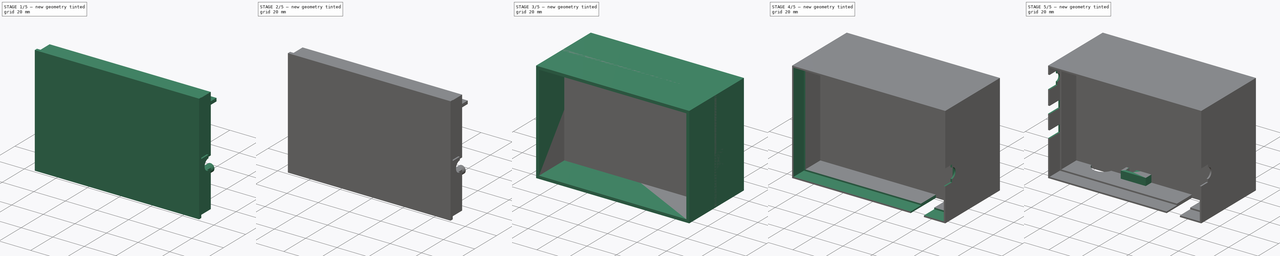
[diagram: build sequence overview — one tinted view per stage of 5, left to right]
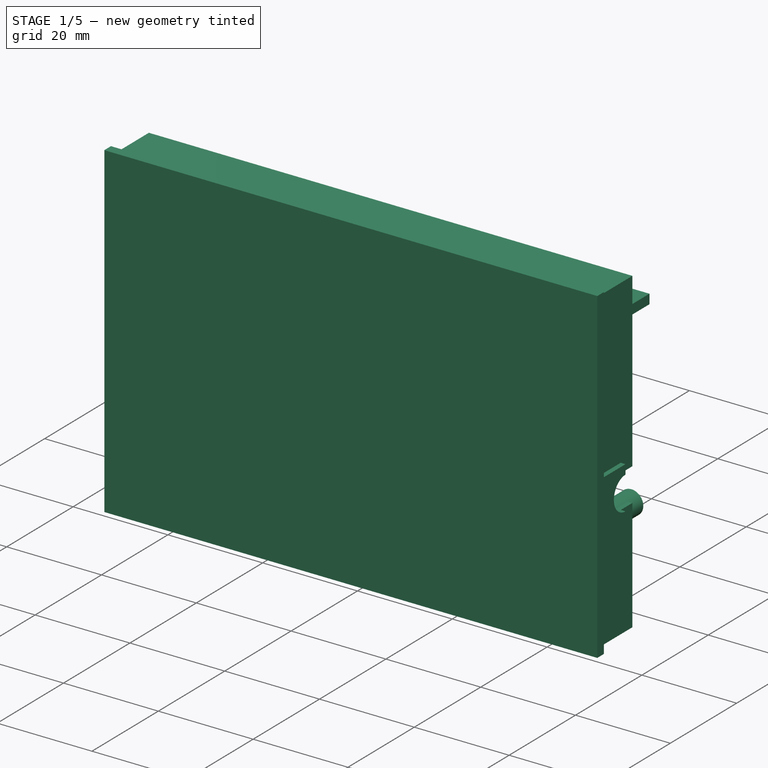
[diagram: stage 1 of 5 — iso view after this stage's code; geometry added in this stage tinted green]
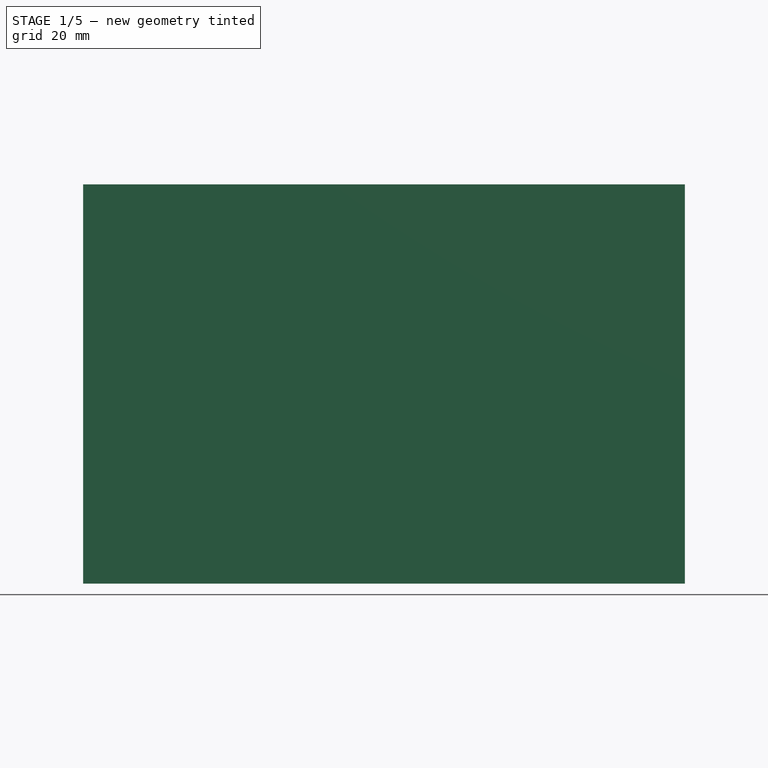
[diagram: stage 1 of 5 — front view after this stage's code; geometry added in this stage tinted green]
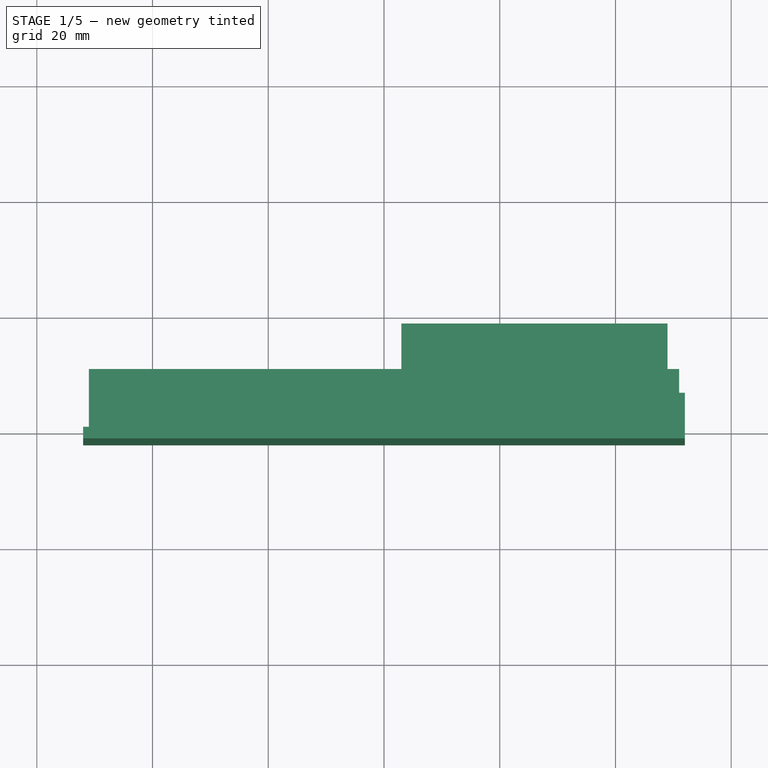
[diagram: stage 1 of 5 — top view after this stage's code; geometry added in this stage tinted green]
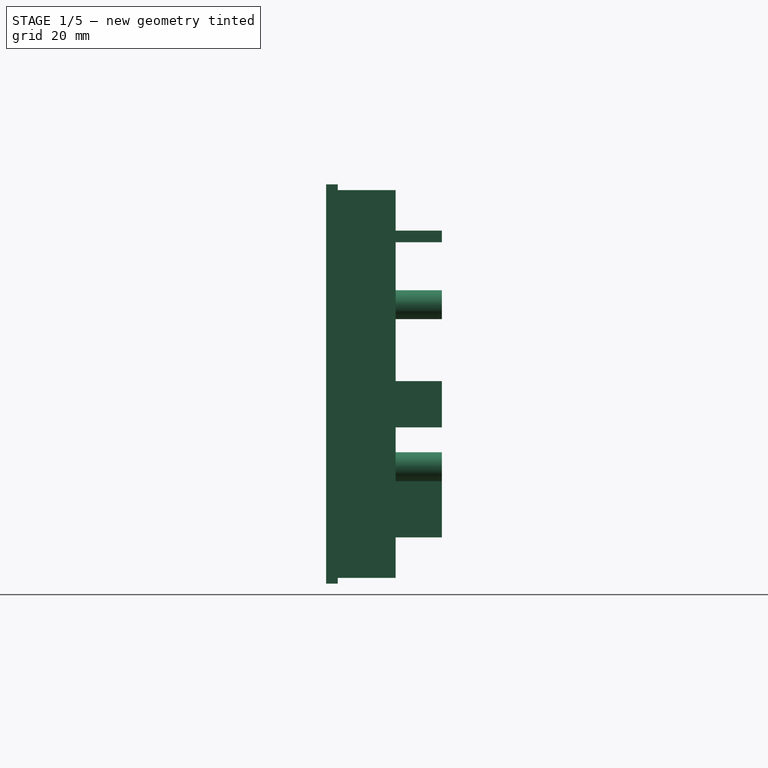
[diagram: stage 1 of 5 — right view after this stage's code; geometry added in this stage tinted green]
FCSTD DOCUMENT  (FreeCAD 0.19R)
Label: control-module-box
License: All rights reserved
LicenseURL: http://en.wikipedia.org/wiki/All_rights_reserved
objects: Sketcher::SketchObject×30, PartDesign::Pad×17, PartDesign::Pocket×13, PartDesign::Body×2
note: 92 computed .brp shape members not serialized (recipe doc carries the construction recipe); baked Part::Feature solids carry a one-line shape summary decoded from their .brp

FEATURE [Sketcher::SketchObject] Sketch007
  FullyConstrained = true
  MapMode = 5
  Placement = pos=(0,0,0) rot=(1,0,0;1.5708rad)
  Support = -> [XZ_Plane001]
  sketch-geometry (4):
    g0: LineSegment StartX=-52 StartY=69 StartZ=0 EndX=52 EndY=69 EndZ=0
    g1: LineSegment StartX=52 StartY=69 StartZ=0 EndX=52 EndY=0 EndZ=0
    g2: LineSegment StartX=52 StartY=0 StartZ=0 EndX=-52 EndY=0 EndZ=0
    g3: LineSegment StartX=-52 StartY=0 StartZ=0 EndX=-52 EndY=69 EndZ=0
  constraints (11):
    c: Coincident(g0,g1)
    c: Coincident(g1,g2)
    c: Coincident(g2,g3)
    c: Coincident(g3,g0)
    c: Horizontal(g0)
    c: Horizontal(g2)
    c: Vertical(g1)
    c: Vertical(g3)
    c: DistanceX(g2,g2) = 104
    c: Symmetric(g1,g2,g-1)
    c: DistanceY(g1,g1) = 69
FEATURE [PartDesign::Pad] Pad004
  Direction = (1,1,1)
  Length = 2
  Length2 = 100
  Placement = pos=(0,0,0) rot=(1,0,0;1.5708rad)
  Profile = -> Sketch007
  Type = 0
FEATURE [Sketcher::SketchObject] Sketch008
  ExternalGeometry = -> [Pad004]
  FullyConstrained = true
  MapMode = 5
  Placement = pos=(0,1e-16,0) rot=(-1,0,0;1.5708rad)
  Support = -> [Pad004]
  sketch-geometry (8):
    g0: LineSegment StartX=-51 StartY=-1 StartZ=0 EndX=51 EndY=-1 EndZ=0
    g1: LineSegment StartX=51 StartY=-1 StartZ=0 EndX=51 EndY=-68 EndZ=0
    g2: LineSegment StartX=51 StartY=-68 StartZ=0 EndX=-51 EndY=-68 EndZ=0
    g3: LineSegment StartX=-51 StartY=-68 StartZ=0 EndX=-51 EndY=-1 EndZ=0
    g4: LineSegment StartX=-50 StartY=-2 StartZ=0 EndX=50 EndY=-2 EndZ=0
    g5: LineSegment StartX=50 StartY=-2 StartZ=0 EndX=50 EndY=-67 EndZ=0
    g6: LineSegment StartX=50 StartY=-67 StartZ=0 EndX=-50 EndY=-67 EndZ=0
    g7: LineSegment StartX=-50 StartY=-67 StartZ=0 EndX=-50 EndY=-2 EndZ=0
  constraints (24):
    c: Coincident(g0,g1)
    c: Coincident(g1,g2)
    c: Coincident(g2,g3)
    c: Coincident(g3,g0)
    c: Horizontal(g0)
    c: Horizontal(g2)
    c: Vertical(g1)
    c: Vertical(g3)
    c: DistanceX(g-3,g0) = 1
    c: DistanceX(g1,g-4) = 1
    c: DistanceY(g-4,g1) = 1
    c: DistanceY(g0,g-3) = 1
    c: Coincident(g4,g5)
    c: Coincident(g5,g6)
    c: Coincident(g6,g7)
    c: Coincident(g7,g4)
    c: Horizontal(g4)
    c: Horizontal(g6)
    c: Vertical(g5)
    c: Vertical(g7)
    c: DistanceX(g5,g1) = 1
    c: DistanceY(g1,g5) = 1
    c: DistanceY(g4,g0) = 1
    c: DistanceX(g0,g4) = 1
FEATURE [PartDesign::Pad] Pad005
  BaseFeature = -> Pad004
  Direction = (1,1,1)
  Length = 10
  Length2 = 100
  Placement = pos=(0,0,0) rot=(1,0,0;1.5708rad)
  Profile = -> Sketch008
  Type = 0
FEATURE [Sketcher::SketchObject] Sketch009
  ExternalGeometry = -> [Pad005]
  FullyConstrained = true
  MapMode = 5
  Placement = pos=(0,1e-16,0) rot=(-1,0,0;1.5708rad)
  Support = -> [Pad005]
  sketch-geometry (4):
    g0: LineSegment StartX=3 StartY=-8 StartZ=0 EndX=49 EndY=-8 EndZ=0
    g1: LineSegment StartX=49 StartY=-8 StartZ=0 EndX=49 EndY=-61 EndZ=0
    g2: LineSegment StartX=49 StartY=-61 StartZ=0 EndX=3 EndY=-61 EndZ=0
    g3: LineSegment StartX=3 StartY=-61 StartZ=0 EndX=3 EndY=-8 EndZ=0
  constraints (13):
    c: Coincident(g0,g1)
    c: Coincident(g1,g2)
    c: Coincident(g2,g3)
    c: Coincident(g3,g0)
    c: Horizontal(g0)
    c: Horizontal(g2)
    c: Vertical(g1)
    c: Vertical(g3)
    c: DistanceY(g1,g1) = 53
    c: DistanceX(g0,g0) = 46
    c: DistanceX(g0,g-3) = 3
    c: DistanceY(g-3,g1) = 8
    c: DistanceY(g0,g-3) = 8
FEATURE [PartDesign::Pad] Pad006
  BaseFeature = -> Pad005
  Direction = (1,1,1)
  Length = 1
  Length2 = 100
  Placement = pos=(0,0,0) rot=(1,0,0;1.5708rad)
  Profile = -> Sketch009
  Type = 0
FEATURE [Sketcher::SketchObject] Sketch010
  ExternalGeometry = -> [Pad006]
  FullyConstrained = true
  MapMode = 5
  Placement = pos=(0,1,-2e-16) rot=(-1,0,0;1.5708rad)
  Support = -> [Pad006]
  sketch-geometry (18):
    g0: Circle CenterX=45.2 CenterY=-20.2 CenterZ=0 NormalX=0 NormalY=0 NormalZ=1 AngleXU=0 Radius=2.5
    g1: Circle CenterX=38.5 CenterY=-48.2 CenterZ=0 NormalX=0 NormalY=0 NormalZ=1 AngleXU=0 Radius=2.5
    g2: LineSegment StartX=3 StartY=-13 StartZ=0 EndX=7 EndY=-13 EndZ=0
    g3: LineSegment StartX=7 StartY=-13 StartZ=0 EndX=7 EndY=-21 EndZ=0
    g4: LineSegment StartX=7 StartY=-21 StartZ=0 EndX=3 EndY=-21 EndZ=0
    g5: LineSegment StartX=3 StartY=-21 StartZ=0 EndX=3 EndY=-13 EndZ=0
    g6: LineSegment StartX=20 StartY=-8 StartZ=0 EndX=23 EndY=-8 EndZ=0
    g7: LineSegment StartX=23 StartY=-8 StartZ=0 EndX=23 EndY=-20 EndZ=0
    g8: LineSegment StartX=23 StartY=-20 StartZ=0 EndX=20 EndY=-20 EndZ=0
    g9: LineSegment StartX=20 StartY=-20 StartZ=0 EndX=20 EndY=-8 EndZ=0
    g10: LineSegment StartX=3 StartY=-27 StartZ=0 EndX=10 EndY=-27 EndZ=0
    g11: LineSegment StartX=10 StartY=-27 StartZ=0 EndX=10 EndY=-35 EndZ=0
    g12: LineSegment StartX=10 StartY=-35 StartZ=0 EndX=3 EndY=-35 EndZ=0
    g13: LineSegment StartX=3 StartY=-35 StartZ=0 EndX=3 EndY=-27 EndZ=0
    g14: LineSegment StartX=49 StartY=-61 StartZ=0 EndX=3 EndY=-61 EndZ=0
    g15: LineSegment StartX=3 StartY=-61 StartZ=0 EndX=3 EndY=-59 EndZ=0
    g16: LineSegment StartX=3 StartY=-59 StartZ=0 EndX=49 EndY=-59 EndZ=0
    g17: LineSegment StartX=49 StartY=-59 StartZ=0 EndX=49 EndY=-61 EndZ=0
  constraints (53):
    c: Coincident(g2,g3)
    c: Coincident(g3,g4)
    c: Coincident(g4,g5)
    c: Coincident(g5,g2)
    c: Horizontal(g2)
    c: Horizontal(g4)
    c: Vertical(g3)
    c: Vertical(g5)
    c: Coincident(g6,g7)
    c: Coincident(g7,g8)
    c: Coincident(g8,g9)
    c: Coincident(g9,g6)
    c: Horizontal(g6)
    c: Horizontal(g8)
    c: Vertical(g7)
    c: Vertical(g9)
    c: Coincident(g10,g11)
    c: Coincident(g11,g12)
    c: Coincident(g12,g13)
    c: Coincident(g13,g10)
    c: Horizontal(g10)
    c: Horizontal(g12)
    c: Vertical(g11)
    c: Vertical(g13)
    c: Diameter(g0) = 5
    c: Diameter(g1) = 5
    c: DistanceX(g0,g-3) = 3.8
    c: DistanceY(g0,g-3) = 12.2
    c: DistanceY(g-3,g1) = 12.8
    c: DistanceX(g1,g-3) = 10.5
    c: PointOnObject(g6,g-4)
    c: DistanceY(g7,g7) = 12
    c: DistanceX(g6,g6) = 3
    c: DistanceX(g-4,g6) = 17
    c: PointOnObject(g2,g-5)
    c: DistanceY(g2,g-5) = 5
    c: DistanceX(g2,g2) = 4
    c: DistanceY(g5,g5) = 8
    c: PointOnObject(g10,g-5)
    c: DistanceY(g13,g13) = 8
    c: DistanceX(g10,g10) = 7
    c: DistanceY(g10,g-5) = 19
    c: Coincident(g14,g15)
    c: Coincident(g15,g16)
    c: Coincident(g16,g17)
    c: Coincident(g17,g14)
    c: Horizontal(g14)
    c: Horizontal(g16)
    c: Vertical(g15)
    c: Vertical(g17)
    c: Coincident(g14,g-3)
    c: PointOnObject(g15,g-5)
    c: DistanceY(g15,g15) = 2
FEATURE [PartDesign::Pad] Pad007
  BaseFeature = -> Pad006
  Direction = (1,1,1)
  Length = 17
  Length2 = 100
  Placement = pos=(0,0,0) rot=(1,0,0;1.5708rad)
  Profile = -> Sketch010
  Type = 0
FEATURE [Sketcher::SketchObject] Sketch013
  FullyConstrained = false
  MapMode = 5
  Placement = pos=(51,0,0) rot=(0.707107,0,0.707107;3.14159rad)
  sketch-geometry (4):
    g0: LineSegment StartX=31.7 StartY=-6.5 StartZ=0 EndX=31.7 EndY=-10 EndZ=0
    g1: LineSegment StartX=31.7 StartY=-10 StartZ=0 EndX=24.7 EndY=-10 EndZ=0
    g2: LineSegment StartX=24.7 StartY=-10 StartZ=0 EndX=24.7 EndY=-6.5 EndZ=0
    g3: ArcOfCircle CenterX=28.2 CenterY=-6.5 CenterZ=0 NormalX=0 NormalY=0 NormalZ=1 AngleXU=0 Radius=3.5 StartAngle=1e-16 EndAngle=3.14159
  constraints (11):
    c: Coincident(g0,g1)
    c: Coincident(g1,g2)
    c: Horizontal(g1)
    c: Vertical(g0)
    c: Vertical(g2)
    c: Distance(g0) = 3.5
    c: DistanceY(g2,g2) = 3.5
    c: Coincident(g3,g0)
    c: Coincident(g3,g2)
    c: DistanceY(g1,g3) = 3.5
    c: DistanceX(g1,g1) = 7
FEATURE [PartDesign::Pocket] Pocket005
  BaseFeature = -> Pad007
  Length = 2
  Length2 = 100
  Placement = pos=(0,0,0) rot=(1,0,0;1.5708rad)
  Profile = -> Sketch013
  Type = 0
FEATURE [Sketcher::SketchObject] Sketch014
  ExternalGeometry = -> [Pocket005]
  FullyConstrained = true
  MapMode = 5
  Placement = pos=(51,0,0) rot=(0.707107,0,0.707107;3.14159rad)
  Support = -> [Pocket005]
  sketch-geometry (6):
    g0: LineSegment StartX=22.7 StartY=3.7e-15 StartZ=0 EndX=33.7 EndY=3.7e-15 EndZ=0
    g1: LineSegment StartX=22.7 StartY=3.7e-15 StartZ=0 EndX=22.7 EndY=-6.5 EndZ=0
    g2: LineSegment StartX=22.7 StartY=-6.5 StartZ=0 EndX=24.7 EndY=-6.5 EndZ=0
    g3: LineSegment StartX=33.7 StartY=3.7e-15 StartZ=0 EndX=33.7 EndY=-6.5 EndZ=0
    g4: LineSegment StartX=33.7 StartY=-6.5 StartZ=0 EndX=31.7 EndY=-6.5 EndZ=0
    g5: ArcOfCircle CenterX=28.2 CenterY=-6.5 CenterZ=0 NormalX=0 NormalY=0 NormalZ=1 AngleXU=0 Radius=3.5 StartAngle=2e-16 EndAngle=3.14159
  constraints (17):
    c: PointOnObject(g0,g-3)
    c: Horizontal(g0)
    c: Coincident(g1,g0)
    c: Vertical(g1)
    c: Coincident(g2,g1)
    c: Horizontal(g2)
    c: Coincident(g3,g0)
    c: Vertical(g3)
    c: Coincident(g4,g3)
    c: Horizontal(g4)
    c: DistanceX(g2,g2) = 2
    c: DistanceX(g4,g4) = 2
    c: Coincident(g5,g-4)
    c: Coincident(g5,g-4)
    c: Coincident(g5,g-4)
    c: Coincident(g5,g2)
    c: Coincident(g5,g4)
FEATURE [PartDesign::Pad] Pad008
  BaseFeature = -> Pocket005
  Direction = (1,1,1)
  Length = 1
  Length2 = 100
  Placement = pos=(0,0,0) rot=(1,0,0;1.5708rad)
  Profile = -> Sketch014
  Type = 0
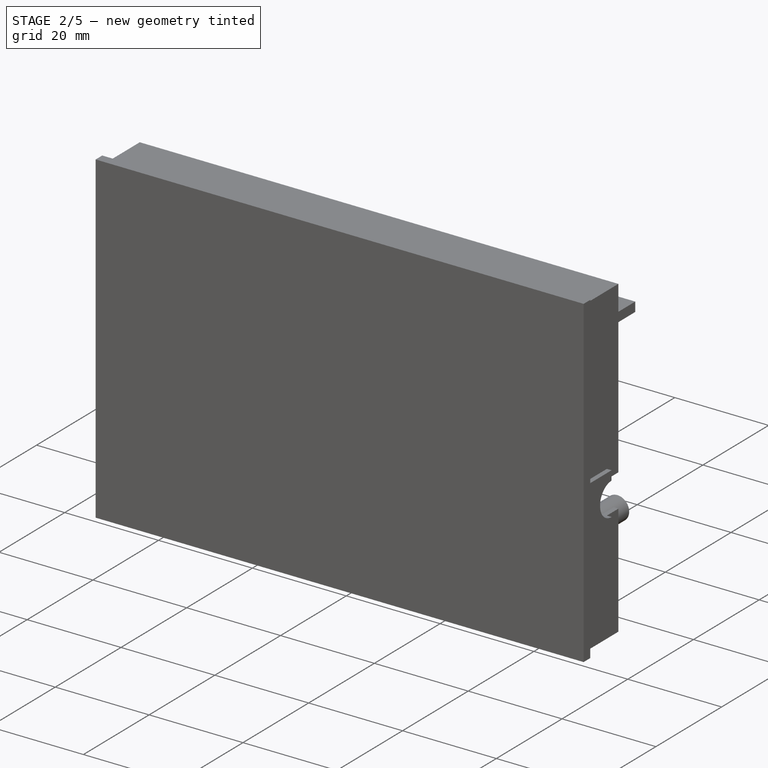
[diagram: stage 2 of 5 — iso view after this stage's code; geometry added in this stage tinted green]
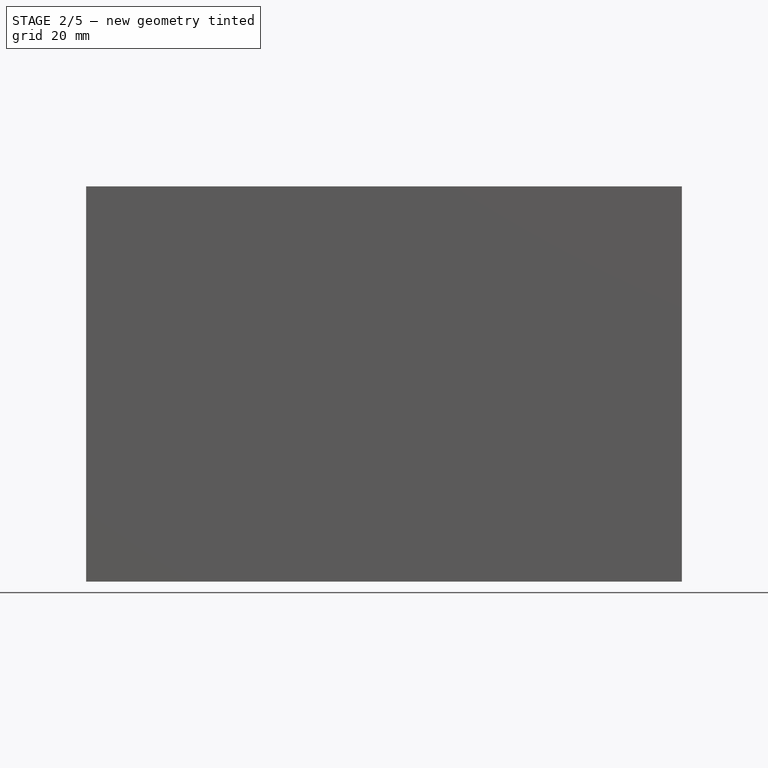
[diagram: stage 2 of 5 — front view after this stage's code; geometry added in this stage tinted green]
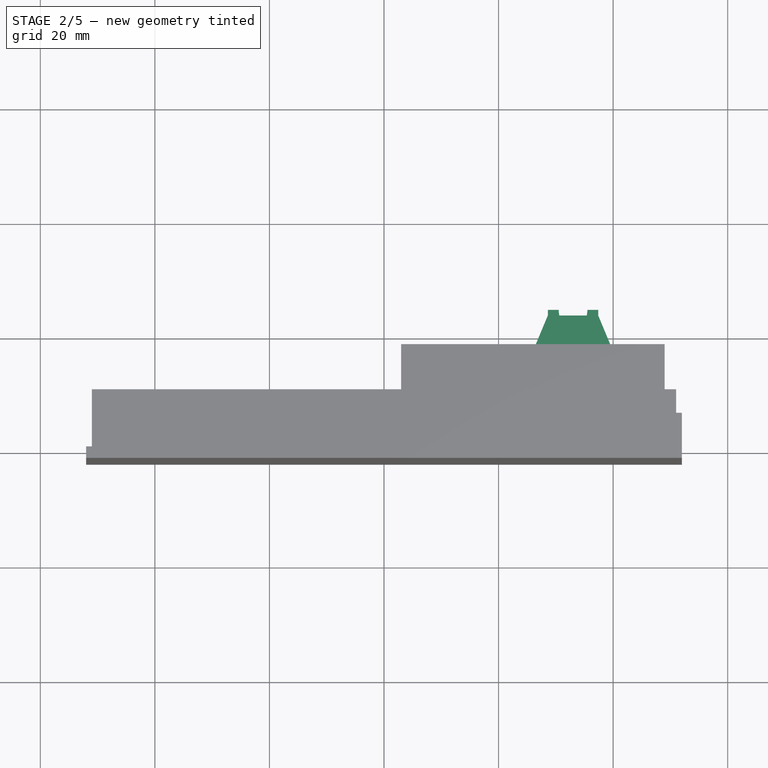
[diagram: stage 2 of 5 — top view after this stage's code; geometry added in this stage tinted green]
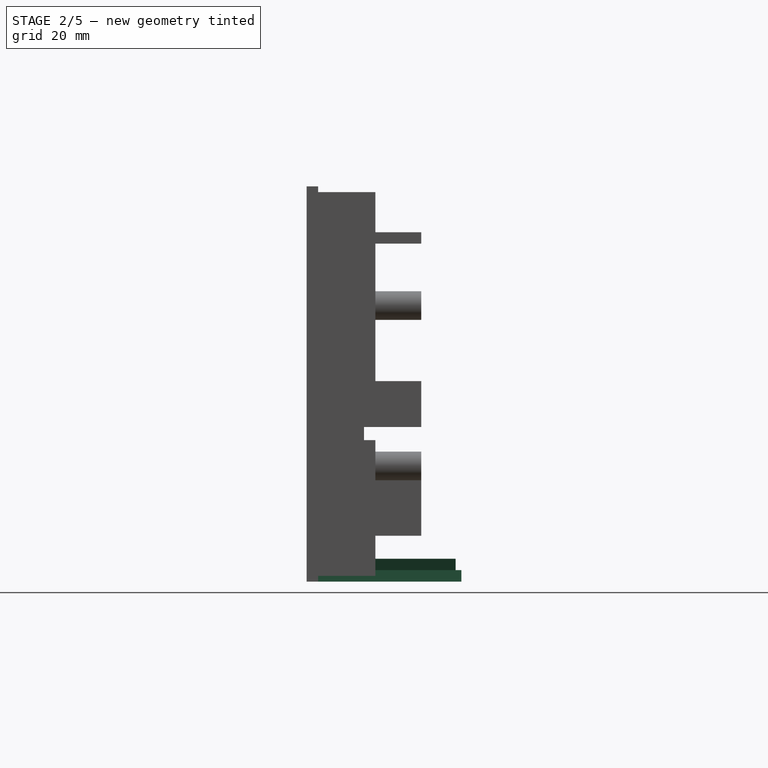
[diagram: stage 2 of 5 — right view after this stage's code; geometry added in this stage tinted green]
FEATURE [Sketcher::SketchObject] Sketch017
  ExternalGeometry = -> [Pad008]
  FullyConstrained = true
  MapMode = 5
  Placement = pos=(0,9e-16,1) rot=(1,0,0;3.14159rad)
  Support = -> [Pad008]
  sketch-geometry (4):
    g0: LineSegment StartX=28.6 StartY=-10 StartZ=0 EndX=37.4 EndY=-10 EndZ=0
    g1: LineSegment StartX=37.4 StartY=-10 StartZ=0 EndX=37.4 EndY=0 EndZ=0
    g2: LineSegment StartX=37.4 StartY=0 StartZ=0 EndX=28.6 EndY=0 EndZ=0
    g3: LineSegment StartX=28.6 StartY=0 StartZ=0 EndX=28.6 EndY=-10 EndZ=0
  constraints (12):
    c: Coincident(g0,g1)
    c: Coincident(g1,g2)
    c: Coincident(g2,g3)
    c: Coincident(g3,g0)
    c: Horizontal(g0)
    c: Horizontal(g2)
    c: Vertical(g1)
    c: Vertical(g3)
    c: PointOnObject(g1,g-3)
    c: PointOnObject(g0,g-4)
    c: DistanceX(g1,g-3) = 14.6
    c: DistanceX(g2,g2) = 8.8
FEATURE [PartDesign::Pad] Pad009
  BaseFeature = -> Pad008
  Direction = (1,1,1)
  Length = 1
  Length2 = 100
  Placement = pos=(0,0,0) rot=(1,0,0;1.5708rad)
  Profile = -> Sketch017
  Type = 0
FEATURE [Sketcher::SketchObject] Sketch020
  ExternalGeometry = -> [Pad009]
  FullyConstrained = true
  MapMode = 5
  Placement = pos=(0,0,0) rot=(1,0,0;3.14159rad)
  Support = -> [Pad009]
  sketch-geometry (10):
    g0: LineSegment StartX=30.5 StartY=-25 StartZ=0 EndX=28.6 EndY=-25 EndZ=0
    g1: LineSegment StartX=28.6 StartY=-25 StartZ=0 EndX=28.6 EndY=-10 EndZ=0
    g2: LineSegment StartX=28.6 StartY=-10 StartZ=0 EndX=37.4 EndY=-10 EndZ=0
    g3: LineSegment StartX=37.4 StartY=-10 StartZ=0 EndX=37.4 EndY=-25 EndZ=0
    g4: LineSegment StartX=37.4 StartY=-25 StartZ=0 EndX=35.5 EndY=-25 EndZ=0
    g5: LineSegment StartX=31 StartY=-23 StartZ=0 EndX=35 EndY=-23 EndZ=0
    g6: LineSegment StartX=30.5 StartY=-23 StartZ=0 EndX=30.5 EndY=-27 EndZ=0
    g7: LineSegment StartX=35.5 StartY=-23 StartZ=0 EndX=35.5 EndY=-27 EndZ=0
    g8: ArcOfCircle CenterX=34.75 CenterY=-25 CenterZ=0 NormalX=0 NormalY=0 NormalZ=1 AngleXU=0 Radius=4.25001 StartAngle=2.65164 EndAngle=3.14159
    g9: ArcOfCircle CenterX=31.25 CenterY=-25 CenterZ=0 NormalX=0 NormalY=0 NormalZ=1 AngleXU=0 Radius=4.24996 StartAngle=6.28318 EndAngle=6.77314
  constraints (33):
    c: Horizontal(g0)
    c: Coincident(g0,g1)
    c: Vertical(g1)
    c: Coincident(g1,g2)
    c: Horizontal(g2)
    c: Coincident(g2,g3)
    c: Vertical(g3)
    c: Coincident(g3,g4)
    c: Horizontal(g4)
    c: Coincident(g2,g-3)
    c: PointOnObject(g-3,g1)
    c: Equal(g1,g3)
    c: DistanceY(g3,g3) = 15
    c: Equal(g4,g0)
    c: DistanceX(g4,g4) = 1.9
    c: Horizontal(g5)
    c: DistanceX(g5,g5) = 4
    c: DistanceX(g0,g5) = 0.5
    c: DistanceY(g0,g5) = 2
    c: Vertical(g6)
    c: Vertical(g7)
    c: PointOnObject(g0,g6)
    c: PointOnObject(g4,g7)
    c: DistanceY(g7,g7) = 4
    c: DistanceY(g6,g6) = 4
    c: PointOnObject(g6,g5)
    c: PointOnObject(g7,g5)
    c: Coincident(g8,g0)
    c: Coincident(g8,g5)
    c: Tangent(g8,g6)
    c: Coincident(g9,g5)
    c: Coincident(g9,g4)
    c: Tangent(g9,g7)
FEATURE [PartDesign::Pad] Pad010
  BaseFeature = -> Pad009
  Direction = (1,1,1)
  Length = 2
  Length2 = 100
  Placement = pos=(0,0,0) rot=(1,0,0;1.5708rad)
  Profile = -> Sketch020
  Reversed = true
  Type = 0
FEATURE [Sketcher::SketchObject] Sketch021
  ExternalGeometry = -> [Pad010]
  FullyConstrained = true
  MapMode = 5
  Placement = pos=(0,3e-15,2) rot=(0,0,1;3.14159rad)
  Support = -> [Pad010]
  sketch-geometry (4):
    g0: LineSegment StartX=-37.4 StartY=1.1e-15 StartZ=0 EndX=-28.6 EndY=1.1e-15 EndZ=0
    g1: LineSegment StartX=-28.6 StartY=1.1e-15 StartZ=0 EndX=-28.6 EndY=-24 EndZ=0
    g2: LineSegment StartX=-28.6 StartY=-24 StartZ=0 EndX=-37.4 EndY=-24 EndZ=0
    g3: LineSegment StartX=-37.4 StartY=-24 StartZ=0 EndX=-37.4 EndY=0 EndZ=0
  constraints (12):
    c: Coincident(g0,g1)
    c: Coincident(g1,g2)
    c: Coincident(g2,g3)
    c: Coincident(g3,g0)
    c: Horizontal(g0)
    c: Horizontal(g2)
    c: Vertical(g1)
    c: Vertical(g3)
    c: PointOnObject(g0,g-4)
    c: PointOnObject(g1,g-3)
    c: DistanceY(g-3,g1) = 1
    c: PointOnObject(g0,g-5)
FEATURE [Sketcher::SketchObject] Sketch030
  FullyConstrained = false
  MapMode = 5
  Placement = pos=(-51,0,0) rot=(0.707107,0,-0.707107;3.14159rad)
  sketch-geometry (12):
    g0: LineSegment StartX=-44.5 StartY=-8 StartZ=0 EndX=-39.5 EndY=-8 EndZ=0
    g1: LineSegment StartX=-39.5 StartY=-8 StartZ=0 EndX=-39.5 EndY=-10 EndZ=0
    g2: LineSegment StartX=-39.5 StartY=-10 StartZ=0 EndX=-44.5 EndY=-10 EndZ=0
    g3: LineSegment StartX=-44.5 StartY=-10 StartZ=0 EndX=-44.5 EndY=-8 EndZ=0
    g4: LineSegment StartX=-29.5 StartY=-8 StartZ=0 EndX=-24.5 EndY=-8 EndZ=0
    g5: LineSegment StartX=-24.5 StartY=-8 StartZ=0 EndX=-24.5 EndY=-10 EndZ=0
    g6: LineSegment StartX=-24.5 StartY=-10 StartZ=0 EndX=-29.5 EndY=-10 EndZ=0
    g7: LineSegment StartX=-29.5 StartY=-10 StartZ=0 EndX=-29.5 EndY=-8 EndZ=0
    g8: LineSegment StartX=-61.5 StartY=-10 StartZ=0 EndX=-61.5 EndY=-7.5 EndZ=0
    g9: LineSegment StartX=-56.5 StartY=-10 StartZ=0 EndX=-56.5 EndY=-7.5 EndZ=0
    g10: LineSegment StartX=-61.5 StartY=-10 StartZ=0 EndX=-56.5 EndY=-10 EndZ=0
    g11: ArcOfCircle CenterX=-59 CenterY=-7.5 CenterZ=0 NormalX=0 NormalY=0 NormalZ=1 AngleXU=0 Radius=2.5 StartAngle=0 EndAngle=3.14159
  constraints (31):
    c: Coincident(g0,g1)
    c: Coincident(g1,g2)
    c: Coincident(g2,g3)
    c: Coincident(g3,g0)
    c: Horizontal(g0)
    c: Horizontal(g2)
    c: Vertical(g1)
    c: Vertical(g3)
    c: Coincident(g4,g5)
    c: Coincident(g5,g6)
    c: Coincident(g6,g7)
    c: Coincident(g7,g4)
    c: Horizontal(g4)
    c: Horizontal(g6)
    c: Vertical(g5)
    c: Vertical(g7)
    c: DistanceX(g2,g2) = 5
    c: DistanceX(g6,g6) = 5
    c: DistanceY(g1,g1) = 2
    c: DistanceY(g7,g7) = 2
    c: DistanceX(g0,g4) = 10
    c: Vertical(g8)
    c: Vertical(g9)
    c: Coincident(g10,g8)
    c: Coincident(g10,g9)
    c: Radius(g11) = 2.5
    c: DistanceY(g11,g11) = 0
    c: DistanceY(g11,g11) = 0
    c: Coincident(g8,g11)
    c: Coincident(g9,g11)
    c: DistanceX(g11,g0) = 14.5
FEATURE [PartDesign::Pocket] Pocket013
  BaseFeature = -> Pad010
  Length = 5
  Length2 = 100
  Placement = pos=(0,0,0) rot=(1,0,0;1.5708rad)
  Profile = -> Sketch030
  Type = 0
FEATURE [PartDesign::Body] Body  label="front"
  Group = -> [Sketch,Pad,Sketch001,Pad001,Sketch002,Pad002,Sketch003,Pocket,Sketch004,Pad003,Sketch005,Pocket001,Sketch006,Pocket002,Sketch012,Pocket004,Sketch015,Pocket006,Sketch016,Pocket007,Sketch032,Pad016,Sketch033,Pocket014,Sketch034,Pocket015,Sketch035,Pad017,Sketch036,Pad018,Sketch037,Pocket016,Sketch038,Pocket017]
  Origin = -> Origin
  Tip = -> Pocket017
FEATURE [Sketcher::SketchObject] Sketch039
  FullyConstrained = false
  MapMode = 5
  Placement = pos=(0,18,-4e-15) rot=(-1,0,0;1.5708rad)
  sketch-geometry (2):
    g0: Circle CenterX=45.2 CenterY=-20.2 CenterZ=0 NormalX=0 NormalY=0 NormalZ=1 AngleXU=0 Radius=1.1
    g1: Circle CenterX=38.5 CenterY=-48.2 CenterZ=0 NormalX=0 NormalY=0 NormalZ=1 AngleXU=0 Radius=1.1
  constraints (2):
    c: Diameter(g1) = 2.2
    c: Diameter(g0) = 2.2
FEATURE [PartDesign::Pocket] Pocket018
  BaseFeature = -> Pocket013
  Length = 7
  Length2 = 100
  Placement = pos=(0,0,0) rot=(1,0,0;1.5708rad)
  Profile = -> Sketch039
  Type = 0
FEATURE [PartDesign::Pad] Pad019
  BaseFeature = -> Pocket018
  Direction = (1,1,1)
  Length = 2
  Length2 = 100
  Placement = pos=(0,0,0) rot=(1,0,0;1.5708rad)
  Profile = -> Sketch021
  Type = 0
FEATURE [Sketcher::SketchObject] Sketch040
  ExternalGeometry = -> [Pad019]
  FullyConstrained = true
  MapMode = 5
  Placement = pos=(0,1.9e-15,2) rot=(0,0,1;3.14159rad)
  Support = -> [Pad019]
  sketch-geometry (6):
    g0: LineSegment StartX=-37.4 StartY=-24 StartZ=0 EndX=-37.4 EndY=0 EndZ=0
    g1: LineSegment StartX=-37.4 StartY=0 StartZ=0 EndX=-47.4 EndY=-1e-16 EndZ=0
    g2: LineSegment StartX=-47.4 StartY=-1e-16 StartZ=0 EndX=-37.4 EndY=-24 EndZ=0
    g3: LineSegment StartX=-28.6 StartY=-24 StartZ=0 EndX=-28.6 EndY=0 EndZ=0
    g4: LineSegment StartX=-28.6 StartY=0 StartZ=0 EndX=-18.6 EndY=-1e-16 EndZ=0
    g5: LineSegment StartX=-18.6 StartY=-1e-16 StartZ=0 EndX=-28.6 EndY=-24 EndZ=0
  constraints (15):
    c: Coincident(g-5,g0)
    c: PointOnObject(g0,g-3)
    c: Vertical(g0)
    c: Coincident(g0,g1)
    c: PointOnObject(g1,g-3)
    c: Coincident(g1,g2)
    c: Coincident(g2,g0)
    c: Coincident(g-6,g3)
    c: Coincident(g3,g-4)
    c: Coincident(g3,g4)
    c: PointOnObject(g4,g-4)
    c: Coincident(g4,g5)
    c: Coincident(g5,g3)
    c: DistanceX(g1,g1) = 10
    c: DistanceX(g4,g4) = 10
FEATURE [PartDesign::Pad] Pad020
  BaseFeature = -> Pad019
  Direction = (1,1,1)
  Length = 2
  Length2 = 100
  Placement = pos=(0,0,0) rot=(1,0,0;1.5708rad)
  Profile = -> Sketch040
  Type = 0
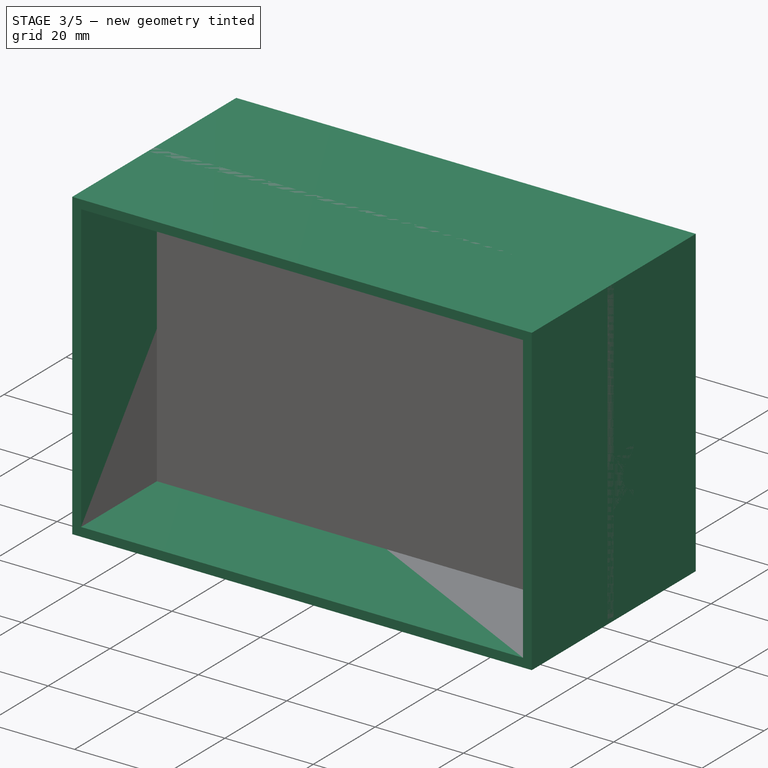
[diagram: stage 3 of 5 — iso view after this stage's code; geometry added in this stage tinted green]
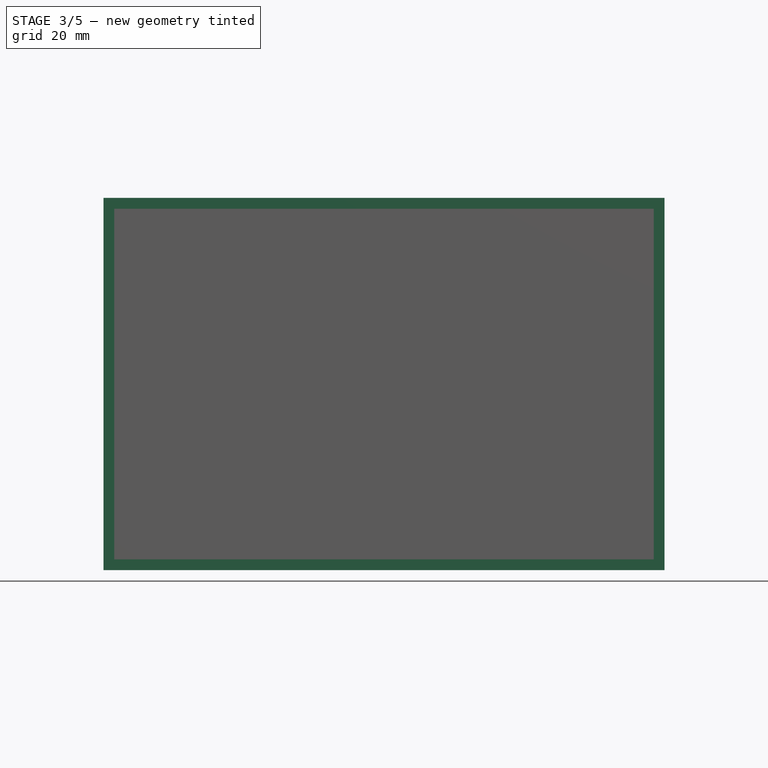
[diagram: stage 3 of 5 — front view after this stage's code; geometry added in this stage tinted green]
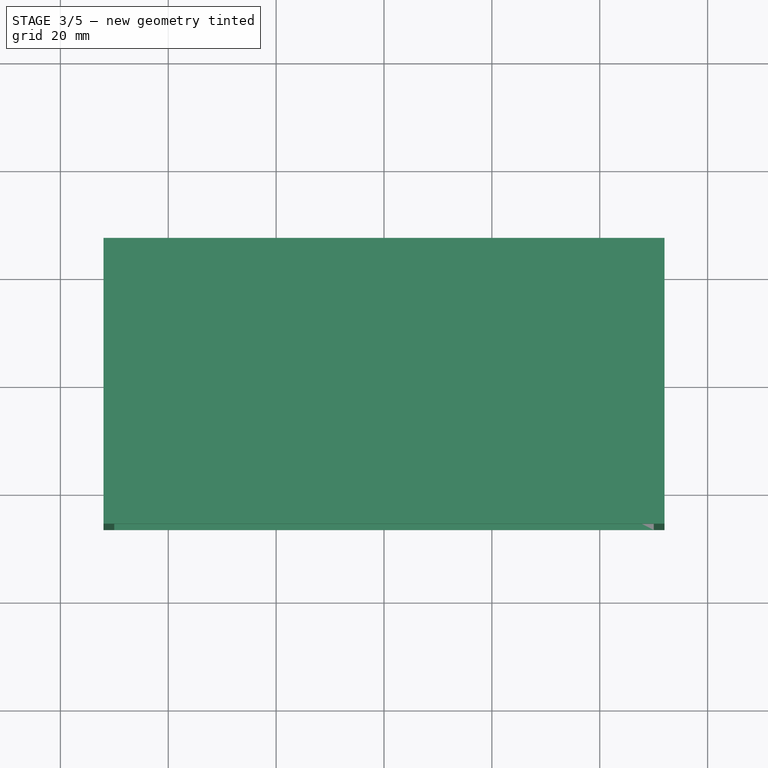
[diagram: stage 3 of 5 — top view after this stage's code; geometry added in this stage tinted green]
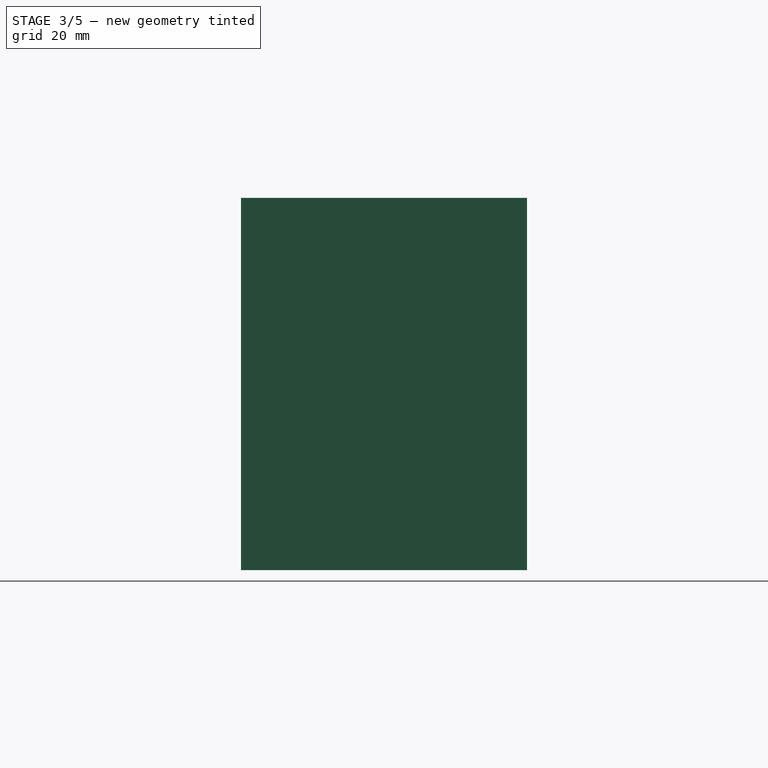
[diagram: stage 3 of 5 — right view after this stage's code; geometry added in this stage tinted green]
FEATURE [Sketcher::SketchObject] Sketch
  FullyConstrained = true
  MapMode = 5
  Support = -> [XY_Plane]
  sketch-geometry (4):
    g0: LineSegment StartX=-52 StartY=26.5 StartZ=0 EndX=52 EndY=26.5 EndZ=0
    g1: LineSegment StartX=52 StartY=26.5 StartZ=0 EndX=52 EndY=-26.5 EndZ=0
    g2: LineSegment StartX=52 StartY=-26.5 StartZ=0 EndX=-52 EndY=-26.5 EndZ=0
    g3: LineSegment StartX=-52 StartY=-26.5 StartZ=0 EndX=-52 EndY=26.5 EndZ=0
  constraints (11):
    c: Coincident(g0,g1)
    c: Coincident(g1,g2)
    c: Coincident(g2,g3)
    c: Coincident(g3,g0)
    c: Horizontal(g0)
    c: Horizontal(g2)
    c: Vertical(g1)
    c: Vertical(g3)
    c: Symmetric(g0,g1,g-1)
    c: DistanceY(g1,g1) = 53
    c: DistanceX(g0,g0) = 104
FEATURE [PartDesign::Pad] Pad
  Direction = (1,1,1)
  Length = 2
  Length2 = 100
  Profile = -> Sketch
  Type = 0
FEATURE [Sketcher::SketchObject] Sketch001
  ExternalGeometry = -> [Pad]
  FullyConstrained = true
  MapMode = 5
  Placement = pos=(0,0,2) rot=(0,0,1;0rad)
  Support = -> [Pad]
  sketch-geometry (8):
    g0: LineSegment StartX=-52 StartY=26.5 StartZ=0 EndX=52 EndY=26.5 EndZ=0
    g1: LineSegment StartX=52 StartY=26.5 StartZ=0 EndX=52 EndY=-26.5 EndZ=0
    g2: LineSegment StartX=-52 StartY=-26.5 StartZ=0 EndX=-52 EndY=26.5 EndZ=0
    g3: LineSegment StartX=-50 StartY=24.5 StartZ=0 EndX=50 EndY=24.5 EndZ=0
    g4: LineSegment StartX=50 StartY=24.5 StartZ=0 EndX=50 EndY=-26.5 EndZ=0
    g5: LineSegment StartX=-50 StartY=-26.5 StartZ=0 EndX=-50 EndY=24.5 EndZ=0
    g6: LineSegment StartX=-52 StartY=-26.5 StartZ=0 EndX=-50 EndY=-26.5 EndZ=0
    g7: LineSegment StartX=50 StartY=-26.5 StartZ=0 EndX=52 EndY=-26.5 EndZ=0
  constraints (22):
    c: Coincident(g0,g1)
    c: Coincident(g2,g0)
    c: Horizontal(g0)
    c: Vertical(g1)
    c: Vertical(g2)
    c: Coincident(g0,g-3)
    c: Coincident(g1,g-4)
    c: Coincident(g3,g4)
    c: Coincident(g5,g3)
    c: Horizontal(g3)
    c: Vertical(g4)
    c: Vertical(g5)
    c: DistanceX(g0,g3) = 2
    c: DistanceX(g4,g1) = 2
    c: DistanceY(g3,g0) = 2
    c: PointOnObject(g4,g-4)
    c: PointOnObject(g5,g-4)
    c: PointOnObject(g2,g-4)
    c: Coincident(g6,g2)
    c: Coincident(g6,g5)
    c: Coincident(g7,g4)
    c: Coincident(g7,g1)
FEATURE [PartDesign::Pad] Pad001
  BaseFeature = -> Pad
  Direction = (1,1,1)
  Length = 65
  Length2 = 100
  Profile = -> Sketch001
  Type = 0
FEATURE [Sketcher::SketchObject] Sketch002
  ExternalGeometry = -> [Pad001]
  FullyConstrained = true
  MapMode = 5
  Placement = pos=(0,0,67) rot=(0,0,1;0rad)
  Support = -> [Pad001]
  sketch-geometry (4):
    g0: LineSegment StartX=-52 StartY=26.5 StartZ=0 EndX=52 EndY=26.5 EndZ=0
    g1: LineSegment StartX=52 StartY=26.5 StartZ=0 EndX=52 EndY=-26.5 EndZ=0
    g2: LineSegment StartX=52 StartY=-26.5 StartZ=0 EndX=-52 EndY=-26.5 EndZ=0
    g3: LineSegment StartX=-52 StartY=-26.5 StartZ=0 EndX=-52 EndY=26.5 EndZ=0
  constraints (10):
    c: Coincident(g0,g1)
    c: Coincident(g1,g2)
    c: Coincident(g2,g3)
    c: Coincident(g3,g0)
    c: Horizontal(g0)
    c: Horizontal(g2)
    c: Vertical(g1)
    c: Vertical(g3)
    c: Coincident(g0,g-3)
    c: Coincident(g1,g-4)
FEATURE [PartDesign::Pad] Pad002
  BaseFeature = -> Pad001
  Direction = (1,1,1)
  Length = 2
  Length2 = 100
  Profile = -> Sketch002
  Type = 0
FEATURE [Sketcher::SketchObject] Sketch003
  ExternalGeometry = -> [Pad002]
  FullyConstrained = true
  MapMode = 5
  Placement = pos=(0,24.5,0) rot=(1,0,0;1.5708rad)
  Support = -> [Pad002]
  sketch-geometry (4):
    g0: LineSegment StartX=-49 StartY=54.5 StartZ=0 EndX=49 EndY=54.5 EndZ=0
    g1: LineSegment StartX=49 StartY=54.5 StartZ=0 EndX=49 EndY=14.5 EndZ=0
    g2: LineSegment StartX=49 StartY=14.5 StartZ=0 EndX=-49 EndY=14.5 EndZ=0
    g3: LineSegment StartX=-49 StartY=14.5 StartZ=0 EndX=-49 EndY=54.5 EndZ=0
  constraints (12):
    c: Coincident(g0,g1)
    c: Coincident(g1,g2)
    c: Coincident(g2,g3)
    c: Coincident(g3,g0)
    c: Horizontal(g2)
    c: Vertical(g1)
    c: Vertical(g3)
    c: DistanceY(g1,g1) = 40
    c: DistanceX(g0,g0) = 98
    c: Symmetric(g0,g0,g-2)
    c: DistanceY(g-1,g1) = 14.5
    c: DistanceY(g0,g-3) = 14.5
FEATURE [PartDesign::Pocket] Pocket
  BaseFeature = -> Pad002
  Length = 5
  Length2 = 100
  Profile = -> Sketch003
  Type = 0
FEATURE [Sketcher::SketchObject] Sketch004
  ExternalGeometry = -> [Pocket]
  FullyConstrained = true
  MapMode = 5
  Placement = pos=(0,24.5,0) rot=(1,0,0;1.5708rad)
  Support = -> [Pocket]
  sketch-geometry (4):
    g0: Circle CenterX=-46.5 CenterY=62.5 CenterZ=0 NormalX=0 NormalY=0 NormalZ=1 AngleXU=0 Radius=3
    g1: Circle CenterX=46.5 CenterY=62.5 CenterZ=0 NormalX=0 NormalY=0 NormalZ=1 AngleXU=0 Radius=3
    g2: Circle CenterX=46.5 CenterY=6.5 CenterZ=0 NormalX=0 NormalY=0 NormalZ=1 AngleXU=0 Radius=3
    g3: Circle CenterX=-46.5 CenterY=6.5 CenterZ=0 NormalX=0 NormalY=0 NormalZ=1 AngleXU=0 Radius=3
  constraints (12):
    c: Diameter(g0) = 6
    c: Diameter(g1) = 6
    c: Diameter(g3) = 6
    c: Diameter(g2) = 6
    c: DistanceY(g-3,g0) = 8
    c: DistanceY(g3,g-4) = 8
    c: DistanceY(g2,g-4) = 8
    c: DistanceY(g-3,g1) = 8
    c: DistanceX(g-3,g0) = 2.5
    c: DistanceX(g-4,g3) = 2.5
    c: DistanceX(g2,g-4) = 2.5
    c: DistanceX(g1,g-3) = 2.5
FEATURE [PartDesign::Pad] Pad003
  BaseFeature = -> Pocket
  Direction = (1,1,1)
  Length = 5
  Length2 = 100
  Profile = -> Sketch004
  Type = 0
FEATURE [Sketcher::SketchObject] Sketch041
  ExternalGeometry = -> [Pad020]
  FullyConstrained = true
  MapMode = 5
  Placement = pos=(-51,0,0) rot=(0.707107,0,-0.707107;3.14159rad)
  Support = -> [Pad020]
  sketch-geometry (14):
    g0: LineSegment StartX=-61.5 StartY=-7.5 StartZ=0 EndX=-63.5 EndY=-7.5 EndZ=0
    g1: LineSegment StartX=-63.5 StartY=-7.5 StartZ=0 EndX=-63.5 EndY=-1.42e-14 EndZ=0
    g2: LineSegment StartX=-63.5 StartY=-1.42e-14 StartZ=0 EndX=-54.5 EndY=-1.21e-14 EndZ=0
    g3: LineSegment StartX=-54.5 StartY=-1.21e-14 StartZ=0 EndX=-54.5 EndY=-7.5 EndZ=0
    g4: LineSegment StartX=-54.5 StartY=-7.5 StartZ=0 EndX=-56.5 EndY=-7.5 EndZ=0
    g5: LineSegment StartX=-44.5 StartY=-8 StartZ=0 EndX=-39.5 EndY=-8 EndZ=0
    g6: LineSegment StartX=-39.5 StartY=-8 StartZ=0 EndX=-39.5 EndY=-8.9e-15 EndZ=0
    g7: LineSegment StartX=-39.5 StartY=-8.8e-15 StartZ=0 EndX=-44.5 EndY=-8.8e-15 EndZ=0
    g8: LineSegment StartX=-44.5 StartY=-8.8e-15 StartZ=0 EndX=-44.5 EndY=-8 EndZ=0
    g9: LineSegment StartX=-29.5 StartY=-8 StartZ=0 EndX=-24.5 EndY=-8 EndZ=0
    g10: LineSegment StartX=-24.5 StartY=-8 StartZ=0 EndX=-24.5 EndY=-5.3e-15 EndZ=0
    g11: LineSegment StartX=-24.5 StartY=-5.4e-15 StartZ=0 EndX=-29.5 EndY=-5.4e-15 EndZ=0
    g12: LineSegment StartX=-29.5 StartY=-5.4e-15 StartZ=0 EndX=-29.5 EndY=-8 EndZ=0
    g13: ArcOfCircle CenterX=-59 CenterY=-7.5 CenterZ=0 NormalX=0 NormalY=0 NormalZ=1 AngleXU=0 Radius=2.5 StartAngle=0 EndAngle=3.14159
  constraints (43):
    c: Horizontal(g0)
    c: Coincident(g0,g1)
    c: PointOnObject(g1,g-3)
    c: Vertical(g1)
    c: Coincident(g1,g2)
    c: PointOnObject(g2,g-3)
    c: Coincident(g2,g3)
    c: Vertical(g3)
    c: Coincident(g3,g4)
    c: Horizontal(g4)
    c: DistanceX(g2,g2) = 9
    c: DistanceX(g-3,g1) = 5.5
    c: DistanceX(g0,g0) = 2
    c: DistanceY(g1,g1) = 7.5
    c: Equal(g4,g0)
    c: Equal(g3,g1)
    c: Coincident(g5,g6)
    c: Coincident(g6,g7)
    c: Coincident(g7,g8)
    c: Coincident(g8,g5)
    c: Horizontal(g5)
    c: Horizontal(g7)
    c: Vertical(g6)
    c: Vertical(g8)
    c: PointOnObject(g6,g-3)
    c: Coincident(g9,g10)
    c: Coincident(g10,g11)
    c: Coincident(g11,g12)
    c: Coincident(g12,g9)
    c: Horizontal(g9)
    c: Horizontal(g11)
    c: Vertical(g10)
    c: Vertical(g12)
    c: PointOnObject(g10,g-3)
    c: DistanceX(g7,g7) = 5
    c: DistanceX(g11,g11) = 5
    c: DistanceX(g6,g11) = 10
    c: DistanceX(g2,g7) = 10
    c: DistanceY(g8,g8) = 8
    c: DistanceY(g12,g12) = 8
    c: Coincident(g13,g0)
    c: Coincident(g13,g4)
    c: Symmetric(g4,g0,g13)
FEATURE [PartDesign::Pad] Pad021
  BaseFeature = -> Pad020
  Direction = (1,1,1)
  Length = 1
  Length2 = 100
  Placement = pos=(0,0,0) rot=(1,0,0;1.5708rad)
  Profile = -> Sketch041
  Type = 0
FEATURE [PartDesign::Body] Body001  label="back"
  Group = -> [Sketch007,Pad004,Sketch008,Pad005,Sketch009,Pad006,Sketch010,Pad007,Sketch013,Pocket005,Sketch014,Pad008,Sketch017,Pad009,Sketch020,Pad010,Sketch021,Sketch030,Pocket013,Sketch039,Pocket018,Pad019,Sketch040,Pad020,Sketch041,Pad021]
  Origin = -> Origin001
  Placement = pos=(0,-26.5,0) rot=(0,0,1;0rad)
  Tip = -> Pad021
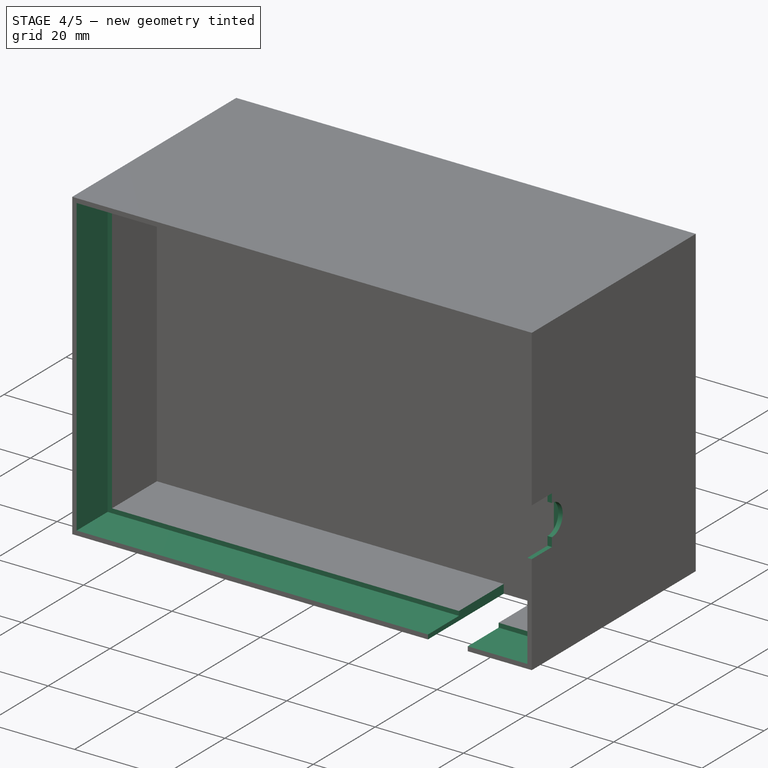
[diagram: stage 4 of 5 — iso view after this stage's code; geometry added in this stage tinted green]
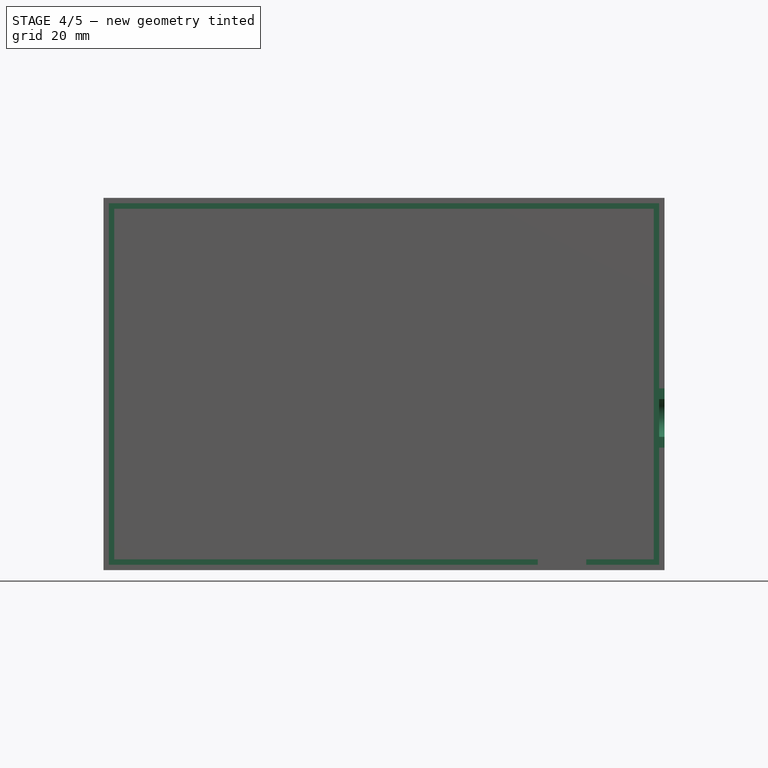
[diagram: stage 4 of 5 — front view after this stage's code; geometry added in this stage tinted green]
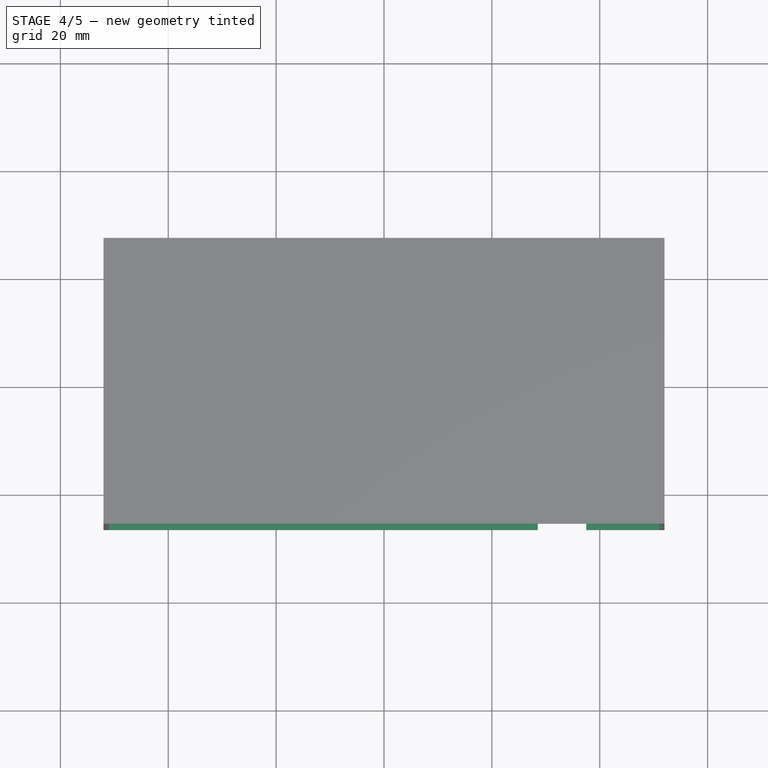
[diagram: stage 4 of 5 — top view after this stage's code; geometry added in this stage tinted green]
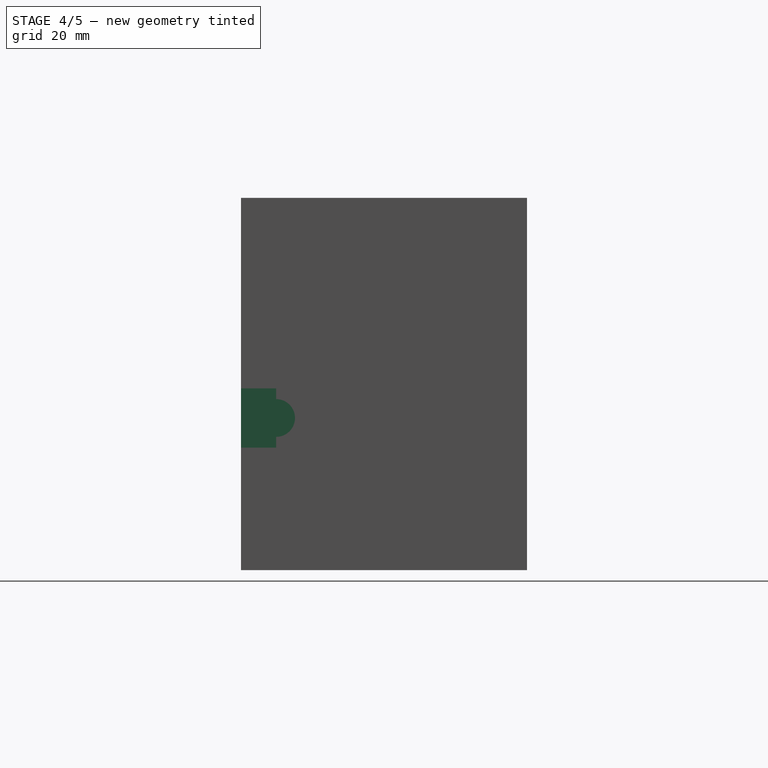
[diagram: stage 4 of 5 — right view after this stage's code; geometry added in this stage tinted green]
FEATURE [Sketcher::SketchObject] Sketch005
  ExternalGeometry = -> [Pad003]
  FullyConstrained = true
  MapMode = 5
  Placement = pos=(0,19.5,0) rot=(1,0,0;1.5708rad)
  Support = -> [Pad003]
  sketch-geometry (4):
    g0: Circle CenterX=-46.5 CenterY=62.5 CenterZ=0 NormalX=0 NormalY=0 NormalZ=1 AngleXU=0 Radius=1.1
    g1: Circle CenterX=46.5 CenterY=62.5 CenterZ=0 NormalX=0 NormalY=0 NormalZ=1 AngleXU=0 Radius=1.1
    g2: Circle CenterX=46.5 CenterY=6.5 CenterZ=0 NormalX=0 NormalY=0 NormalZ=1 AngleXU=0 Radius=1.1
    g3: Circle CenterX=-46.5 CenterY=6.5 CenterZ=0 NormalX=0 NormalY=0 NormalZ=1 AngleXU=0 Radius=1.1
  constraints (8):
    c: Coincident(g0,g-3)
    c: Coincident(g1,g-4)
    c: Coincident(g2,g-5)
    c: Coincident(g3,g-6)
    c: Diameter(g3) = 2.2
    c: Diameter(g2) = 2.2
    c: Diameter(g1) = 2.2
    c: Diameter(g0) = 2.2
FEATURE [PartDesign::Pocket] Pocket001
  BaseFeature = -> Pad003
  Length = 6
  Length2 = 100
  Profile = -> Sketch005
  Type = 0
FEATURE [Sketcher::SketchObject] Sketch006
  ExternalGeometry = -> [Pocket001]
  FullyConstrained = true
  MapMode = 5
  Placement = pos=(0,-26.5,0) rot=(1,0,0;1.5708rad)
  Support = -> [Pocket001]
  sketch-geometry (4):
    g0: LineSegment StartX=-51 StartY=68 StartZ=0 EndX=51 EndY=68 EndZ=0
    g1: LineSegment StartX=51 StartY=68 StartZ=0 EndX=51 EndY=1 EndZ=0
    g2: LineSegment StartX=51 StartY=1 StartZ=0 EndX=-51 EndY=1 EndZ=0
    g3: LineSegment StartX=-51 StartY=1 StartZ=0 EndX=-51 EndY=68 EndZ=0
  constraints (12):
    c: Coincident(g0,g1)
    c: Coincident(g1,g2)
    c: Coincident(g2,g3)
    c: Coincident(g3,g0)
    c: Horizontal(g0)
    c: Horizontal(g2)
    c: Vertical(g1)
    c: Vertical(g3)
    c: DistanceX(g-3,g1) = 1
    c: DistanceY(g1,g-3) = 1
    c: DistanceY(g-4,g0) = 1
    c: DistanceX(g0,g-4) = 1
FEATURE [PartDesign::Pocket] Pocket002
  BaseFeature = -> Pocket001
  Length = 10
  Length2 = 100
  Profile = -> Sketch006
  Type = 0
FEATURE [Sketcher::SketchObject] Sketch012
  ExternalGeometry = -> [Pocket002]
  FullyConstrained = true
  MapMode = 5
  Placement = pos=(52,0,0) rot=(0.57735,0.57735,0.57735;2.0944rad)
  Support = -> [Pocket002]
  sketch-geometry (7):
    g0: LineSegment StartX=-13.5 StartY=20.2 StartZ=0 EndX=-8.5 EndY=20.2 EndZ=0
    g1: ArcOfCircle CenterX=-20 CenterY=28.2 CenterZ=0 NormalX=0 NormalY=0 NormalZ=1 AngleXU=0 Radius=3.5 StartAngle=4.71239 EndAngle=7.85398
    g2: LineSegment StartX=-26.5 StartY=33.7 StartZ=0 EndX=-26.5 EndY=22.7 EndZ=0
    g3: LineSegment StartX=-26.5 StartY=33.7 StartZ=0 EndX=-20 EndY=33.7 EndZ=0
    g4: LineSegment StartX=-26.5 StartY=22.7 StartZ=0 EndX=-20 EndY=22.7 EndZ=0
    g5: LineSegment StartX=-20 StartY=22.7 StartZ=0 EndX=-20 EndY=24.7 EndZ=0
    g6: LineSegment StartX=-20 StartY=33.7 StartZ=0 EndX=-20 EndY=31.7 EndZ=0
  constraints (23):
    c: Horizontal(g0)
    c: DistanceY(g-1,g0) = 20.2
    c: DistanceX(g0,g-1) = 8.5
    c: DistanceX(g0,g0) = 5
    c: Diameter(g1) = 7
    c: DistanceX(g1,g0) = 11.5
    c: DistanceY(g0,g1) = 8
    c: Vertical(g2)
    c: PointOnObject(g2,g-3)
    c: Coincident(g3,g2)
    c: Horizontal(g3)
    c: Coincident(g4,g2)
    c: Horizontal(g4)
    c: Coincident(g5,g4)
    c: Vertical(g5)
    c: Coincident(g6,g3)
    c: Vertical(g6)
    c: DistanceY(g6,g6) = 2
    c: DistanceY(g5,g5) = 2
    c: DistanceX(g1,g0) = 11.5
    c: DistanceX(g1,g0) = 11.5
    c: Coincident(g6,g1)
    c: Coincident(g5,g1)
FEATURE [PartDesign::Pocket] Pocket004
  BaseFeature = -> Pocket002
  Length = 5
  Length2 = 100
  Profile = -> Sketch012
  Type = 0
FEATURE [Sketcher::SketchObject] Sketch015
  ExternalGeometry = -> [Pocket004]
  FullyConstrained = true
  MapMode = 5
  Placement = pos=(0,0,0) rot=(1,0,0;3.14159rad)
  Support = -> [Pocket004]
  sketch-geometry (8):
    g0: LineSegment StartX=9 StartY=8.5 StartZ=0 EndX=49 EndY=8.5 EndZ=0
    g1: LineSegment StartX=31 StartY=3.5 StartZ=0 EndX=35 EndY=3.5 EndZ=0
    g2: LineSegment StartX=31 StartY=-0.5 StartZ=0 EndX=35 EndY=-0.5 EndZ=0
    g3: GeomPoint X=30.5 Y=1.5 Z=0
    g4: GeomPoint X=35.5 Y=1.5 Z=0
    g5: ArcOfCircle CenterX=34.75 CenterY=1.5 CenterZ=0 NormalX=0 NormalY=0 NormalZ=1 AngleXU=0 Radius=4.25 StartAngle=2.65164 EndAngle=3.63155
    g6: ArcOfCircle CenterX=31.25 CenterY=1.5 CenterZ=0 NormalX=0 NormalY=0 NormalZ=1 AngleXU=0 Radius=4.25 StartAngle=5.79323 EndAngle=6.77314
    g7: LineSegment StartX=49 StartY=25.5 StartZ=0 EndX=49 EndY=26.5 EndZ=0
  constraints (26):
    c: Horizontal(g0)
    c: DistanceY(g0,g-3) = 18
    c: DistanceX(g0,g0) = 40
    c: Horizontal(g1)
    c: Horizontal(g2)
    c: Equal(g1,g2)
    c: DistanceX(g1,g2) = 0
    c: DistanceY(g2,g1) = 4
    c: DistanceX(g1,g1) = 4
    c: DistanceX(g3,g4) = 5
    c: DistanceX(g3,g1) = 0.5
    c: DistanceY(g4,g3) = 0
    c: DistanceY(g4,g1) = 2
    c: Coincident(g5,g1)
    c: Coincident(g5,g2)
    c: PointOnObject(g3,g5)
    c: Coincident(g6,g1)
    c: Coincident(g6,g2)
    c: PointOnObject(g4,g6)
    c: Vertical(g7)
    c: DistanceX(g7,g-3) = 3
    c: DistanceY(g7,g7) = 1
    c: DistanceY(g7,g-3) = 0
    c: PointOnObject(g0,g7)
    c: DistanceX(g1,g0) = 14
    c: DistanceY(g1,g0) = 5
FEATURE [PartDesign::Pocket] Pocket006
  BaseFeature = -> Pocket004
  Length = 5
  Length2 = 100
  Profile = -> Sketch015
  Type = 0
FEATURE [Sketcher::SketchObject] Sketch016
  ExternalGeometry = -> [Pocket006]
  FullyConstrained = true
  MapMode = 5
  Placement = pos=(0,0,0) rot=(1,0,0;3.14159rad)
  Support = -> [Pocket006]
  sketch-geometry (6):
    g0: LineSegment StartX=28.5 StartY=1.5 StartZ=0 EndX=28.5 EndY=26.5 EndZ=0
    g1: LineSegment StartX=37.5 StartY=26.5 StartZ=0 EndX=37.5 EndY=1.5 EndZ=0
    g2: LineSegment StartX=28.5 StartY=26.5 StartZ=0 EndX=37.5 EndY=26.5 EndZ=0
    g3: LineSegment StartX=28.5 StartY=1.5 StartZ=0 EndX=37.5 EndY=1.5 EndZ=0
    g4: LineSegment StartX=30.5 StartY=2.5 StartZ=0 EndX=30.5 EndY=0.5 EndZ=0
    g5: LineSegment StartX=35.5 StartY=2.5 StartZ=0 EndX=35.5 EndY=0.5 EndZ=0
  constraints (20):
    c: Vertical(g0)
    c: Vertical(g1)
    c: PointOnObject(g0,g-5)
    c: PointOnObject(g1,g-5)
    c: Coincident(g2,g0)
    c: Coincident(g2,g1)
    c: DistanceY(g1,g-3) = 0
    c: DistanceY(g0,g-4) = 0
    c: Coincident(g3,g0)
    c: Coincident(g3,g1)
    c: Vertical(g4)
    c: Vertical(g5)
    c: DistanceY(g5,g5) = 2
    c: DistanceY(g4,g4) = 2
    c: DistanceY(g-3,g4) = 1
    c: DistanceY(g-4,g5) = 1
    c: Tangent(g4,g-3)
    c: Tangent(g5,g-4)
    c: DistanceX(g5,g1) = 2
    c: DistanceX(g0,g4) = 2
FEATURE [PartDesign::Pocket] Pocket007
  BaseFeature = -> Pocket006
  Length = 5
  Length2 = 100
  Profile = -> Sketch016
  Type = 0
FEATURE [Sketcher::SketchObject] Sketch032
  FullyConstrained = false
  MapMode = 5
  Placement = pos=(0,0,2) rot=(0,0,1;0rad)
  sketch-geometry (4):
    g0: LineSegment StartX=28.5 StartY=3.5 StartZ=0 EndX=37.5 EndY=3.5 EndZ=0
    g1: LineSegment StartX=37.5 StartY=3.5 StartZ=0 EndX=37.5 EndY=-0.5 EndZ=0
    g2: LineSegment StartX=37.5 StartY=-0.5 StartZ=0 EndX=28.5 EndY=-0.5 EndZ=0
    g3: LineSegment StartX=28.5 StartY=-0.5 StartZ=0 EndX=28.5 EndY=3.5 EndZ=0
  constraints (9):
    c: Coincident(g0,g1)
    c: Coincident(g1,g2)
    c: Coincident(g2,g3)
    c: Coincident(g3,g0)
    c: Horizontal(g0)
    c: Horizontal(g2)
    c: Vertical(g1)
    c: Vertical(g3)
    c: DistanceY(g3,g3) = 4
FEATURE [PartDesign::Pad] Pad016
  BaseFeature = -> Pocket007
  Direction = (1,1,1)
  Length = 2
  Length2 = 100
  Profile = -> Sketch032
  Type = 0
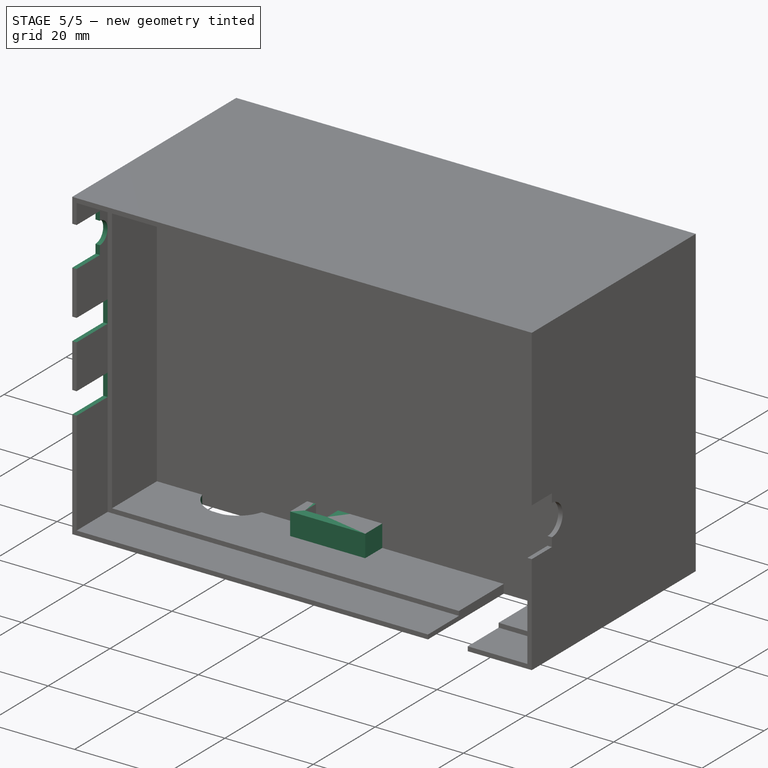
[diagram: stage 5 of 5 — iso view after this stage's code; geometry added in this stage tinted green]
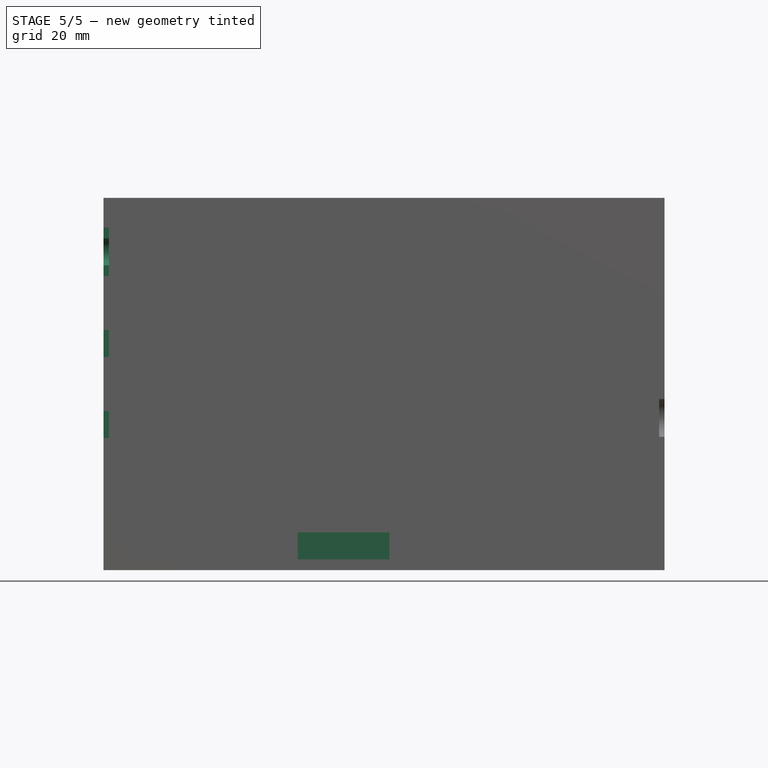
[diagram: stage 5 of 5 — front view after this stage's code; geometry added in this stage tinted green]
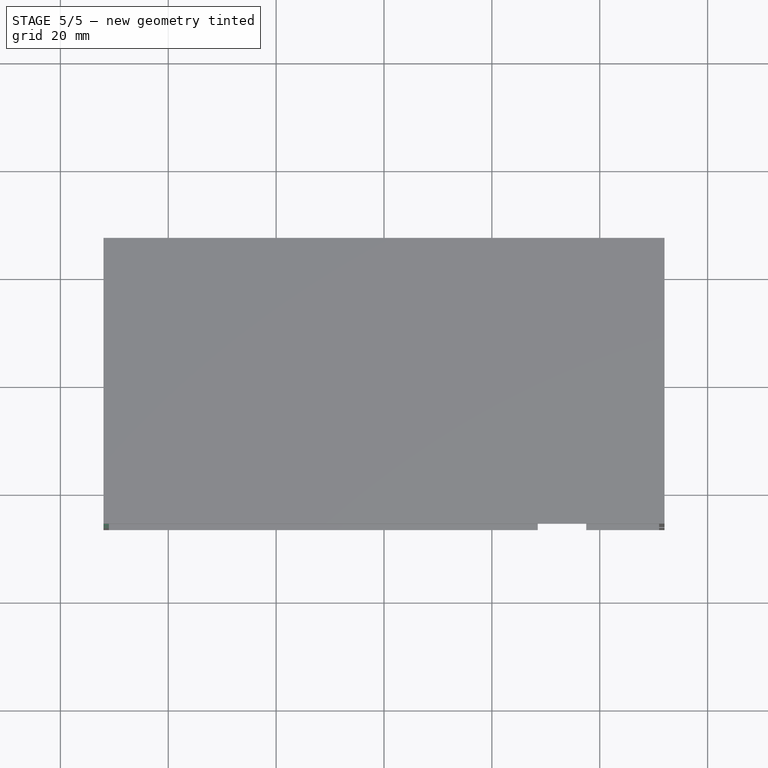
[diagram: stage 5 of 5 — top view after this stage's code; geometry added in this stage tinted green]
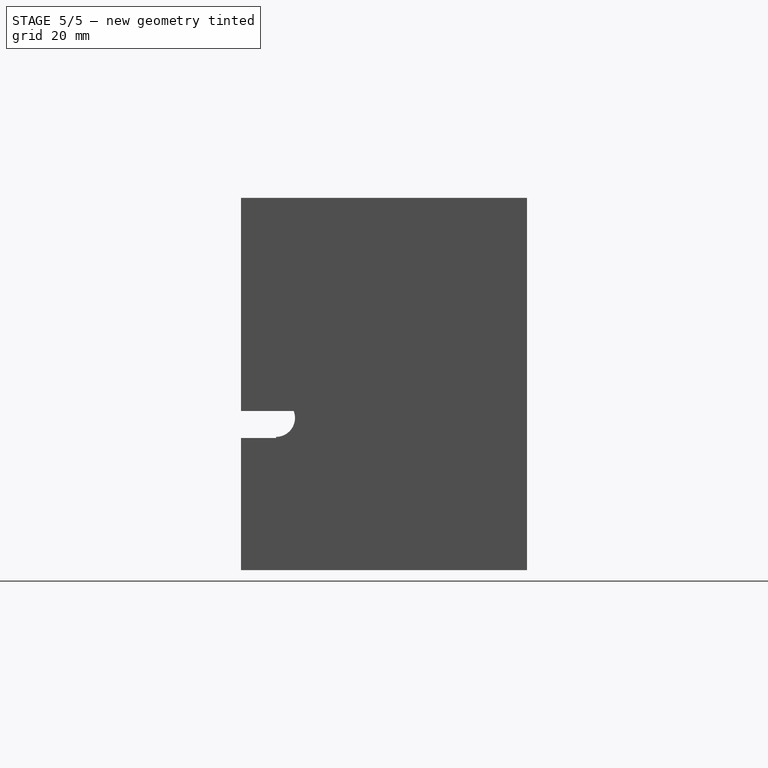
[diagram: stage 5 of 5 — right view after this stage's code; geometry added in this stage tinted green]
FEATURE [Sketcher::SketchObject] Sketch033
  ExternalGeometry = -> [Pad016]
  FullyConstrained = true
  MapMode = 5
  Placement = pos=(-52,0,0) rot=(0.57735,-0.57735,-0.57735;2.0944rad)
  Support = -> [Pad016]
  sketch-geometry (14):
    g0: LineSegment StartX=26.5 StartY=63.5 StartZ=0 EndX=19 EndY=63.5 EndZ=0
    g1: LineSegment StartX=19 StartY=63.5 StartZ=0 EndX=19 EndY=61.5 EndZ=0
    g2: LineSegment StartX=26.5 StartY=54.5 StartZ=0 EndX=19 EndY=54.5 EndZ=0
    g3: LineSegment StartX=19 StartY=54.5 StartZ=0 EndX=19 EndY=56.5 EndZ=0
    g4: LineSegment StartX=26.5 StartY=63.5 StartZ=0 EndX=26.5 EndY=54.5 EndZ=0
    g5: ArcOfCircle CenterX=19 CenterY=59 CenterZ=0 NormalX=0 NormalY=0 NormalZ=1 AngleXU=0 Radius=2.5 StartAngle=1.5708 EndAngle=4.71239
    g6: LineSegment StartX=16.5 StartY=44.5 StartZ=0 EndX=26.5 EndY=44.5 EndZ=0
    g7: LineSegment StartX=26.5 StartY=44.5 StartZ=0 EndX=26.5 EndY=39.5 EndZ=0
    g8: LineSegment StartX=26.5 StartY=39.5 StartZ=0 EndX=16.5 EndY=39.5 EndZ=0
    g9: LineSegment StartX=16.5 StartY=39.5 StartZ=0 EndX=16.5 EndY=44.5 EndZ=0
    g10: LineSegment StartX=16.5 StartY=29.5 StartZ=0 EndX=26.5 EndY=29.5 EndZ=0
    g11: LineSegment StartX=26.5 StartY=29.5 StartZ=0 EndX=26.5 EndY=24.5 EndZ=0
    g12: LineSegment StartX=26.5 StartY=24.5 StartZ=0 EndX=16.5 EndY=24.5 EndZ=0
    g13: LineSegment StartX=16.5 StartY=24.5 StartZ=0 EndX=16.5 EndY=29.5 EndZ=0
  constraints (43):
    c: Horizontal(g0)
    c: Coincident(g0,g1)
    c: Vertical(g1)
    c: Horizontal(g2)
    c: Coincident(g2,g3)
    c: Vertical(g3)
    c: Coincident(g4,g2)
    c: Vertical(g4)
    c: DistanceY(g4,g4) = 9
    c: DistanceX(g0,g0) = 7.5
    c: DistanceY(g1,g1) = 2
    c: Equal(g0,g2)
    c: Equal(g1,g3)
    c: Symmetric(g3,g1,g5)
    c: Coincident(g5,g1)
    c: PointOnObject(g5,g3)
    c: Coincident(g6,g7)
    c: Coincident(g7,g8)
    c: Coincident(g8,g9)
    c: Coincident(g9,g6)
    c: Horizontal(g6)
    c: Horizontal(g8)
    c: Vertical(g7)
    c: Vertical(g9)
    c: Coincident(g10,g11)
    c: DistanceX(g8,g8) = 10
    c: DistanceY(g9,g9) = 5
    c: DistanceY(g6,g2) = 10
    c: DistanceY(g10,g7) = 10
    c: DistanceY(g13,g13) = 5
    c: DistanceX(g10,g10) = 10
    c: PointOnObject(g4,g-3)
    c: Coincident(g4,g0)
    c: DistanceY(g0,g-3) = 3.5
    c: PointOnObject(g6,g-3)
    c: PointOnObject(g10,g-3)
    c: Vertical(g13)
    c: Horizontal(g10)
    c: Horizontal(g12)
    c: Vertical(g11)
    c: Coincident(g12,g11)
    c: Coincident(g12,g13)
    c: Coincident(g13,g10)
FEATURE [PartDesign::Pocket] Pocket014
  BaseFeature = -> Pad016
  Length = 5
  Length2 = 100
  Profile = -> Sketch033
  Type = 0
FEATURE [Sketcher::SketchObject] Sketch034
  ExternalGeometry = -> [Pocket014]
  FullyConstrained = true
  MapMode = 5
  Placement = pos=(0,0,0) rot=(1,0,0;3.14159rad)
  Support = -> [Pocket014]
  sketch-geometry (5):
    g0: LineSegment StartX=-14 StartY=5.5 StartZ=0 EndX=-1 EndY=5.5 EndZ=0
    g1: LineSegment StartX=-1 StartY=5.5 StartZ=0 EndX=-1 EndY=-5.5 EndZ=0
    g2: LineSegment StartX=-1 StartY=-5.5 StartZ=0 EndX=-14 EndY=-5.5 EndZ=0
    g3: LineSegment StartX=-14 StartY=-5.5 StartZ=0 EndX=-14 EndY=5.5 EndZ=0
    g4: Circle CenterX=-33 CenterY=0 CenterZ=0 NormalX=0 NormalY=0 NormalZ=1 AngleXU=0 Radius=7
  constraints (16):
    c: Coincident(g0,g1)
    c: Coincident(g1,g2)
    c: Coincident(g2,g3)
    c: Coincident(g3,g0)
    c: Horizontal(g0)
    c: Horizontal(g2)
    c: Vertical(g1)
    c: Vertical(g3)
    c: PointOnObject(g4,g-1)
    c: Diameter(g4) = 14
    c: DistanceX(g0,g0) = 13
    c: DistanceY(g3,g3) = 11
    c: DistanceX(g-3,g1) = 51
    c: DistanceY(g-1,g0) = 5.5
    c: DistanceX(g-3,g4) = 19
    c: DistanceX(g4,g0) = 19
FEATURE [PartDesign::Pocket] Pocket015
  BaseFeature = -> Pocket014
  Length = 5
  Length2 = 100
  Profile = -> Sketch034
  Type = 0
FEATURE [Sketcher::SketchObject] Sketch035
  ExternalGeometry = -> [Pocket015]
  FullyConstrained = true
  MapMode = 5
  Placement = pos=(0,0,2) rot=(0,0,1;0rad)
  Support = -> [Pocket015]
  sketch-geometry (4):
    g0: LineSegment StartX=-16 StartY=7.5 StartZ=0 EndX=1 EndY=7.5 EndZ=0
    g1: LineSegment StartX=1 StartY=7.5 StartZ=0 EndX=1 EndY=-7.5 EndZ=0
    g2: LineSegment StartX=1 StartY=-7.5 StartZ=0 EndX=-16 EndY=-7.5 EndZ=0
    g3: LineSegment StartX=-16 StartY=-7.5 StartZ=0 EndX=-16 EndY=7.5 EndZ=0
  constraints (12):
    c: Coincident(g0,g1)
    c: Coincident(g1,g2)
    c: Coincident(g2,g3)
    c: Coincident(g3,g0)
    c: Horizontal(g0)
    c: Horizontal(g2)
    c: Vertical(g1)
    c: Vertical(g3)
    c: DistanceX(g0,g-3) = 2
    c: DistanceX(g-4,g1) = 2
    c: DistanceY(g-3,g0) = 2
    c: DistanceY(g1,g-4) = 2
FEATURE [PartDesign::Pad] Pad017
  BaseFeature = -> Pocket015
  Direction = (1,1,1)
  Length = 5
  Length2 = 100
  Profile = -> Sketch035
  Type = 0
FEATURE [Sketcher::SketchObject] Sketch036
  ExternalGeometry = -> [Pad017]
  FullyConstrained = true
  MapMode = 5
  Placement = pos=(-16,0,0) rot=(0.57735,-0.57735,-0.57735;2.0944rad)
  Support = -> [Pad017]
  sketch-geometry (3):
    g0: LineSegment StartX=-7.5 StartY=7 StartZ=0 EndX=-7.5 EndY=2 EndZ=0
    g1: LineSegment StartX=-7.5 StartY=2 StartZ=0 EndX=-12.5 EndY=2 EndZ=0
    g2: LineSegment StartX=-12.5 StartY=2 StartZ=0 EndX=-7.5 EndY=7 EndZ=0
  constraints (7):
    c: Coincident(g-3,g0)
    c: Coincident(g0,g1)
    c: Horizontal(g1)
    c: Coincident(g1,g2)
    c: Coincident(g2,g0)
    c: DistanceX(g1,g1) = 5
    c: Coincident(g0,g-3)
FEATURE [PartDesign::Pad] Pad018
  BaseFeature = -> Pad017
  Direction = (1,1,1)
  Length = 17
  Length2 = 100
  Profile = -> Sketch036
  Reversed = true
  Type = 0
FEATURE [Sketcher::SketchObject] Sketch037
  ExternalGeometry = -> [Pad018]
  FullyConstrained = true
  MapMode = 5
  Placement = pos=(0,0,2) rot=(1,0,0;3.14159rad)
  Support = -> [Pad018]
  sketch-geometry (4):
    g0: LineSegment StartX=-14 StartY=5.5 StartZ=0 EndX=-1 EndY=5.5 EndZ=0
    g1: LineSegment StartX=-1 StartY=5.5 StartZ=0 EndX=-1 EndY=-5.5 EndZ=0
    g2: LineSegment StartX=-1 StartY=-5.5 StartZ=0 EndX=-14 EndY=-5.5 EndZ=0
    g3: LineSegment StartX=-14 StartY=-5.5 StartZ=0 EndX=-14 EndY=5.5 EndZ=0
  constraints (10):
    c: Coincident(g0,g1)
    c: Coincident(g1,g2)
    c: Coincident(g2,g3)
    c: Coincident(g3,g0)
    c: Horizontal(g0)
    c: Horizontal(g2)
    c: Vertical(g1)
    c: Vertical(g3)
    c: Coincident(g0,g-3)
    c: Coincident(g1,g-4)
FEATURE [PartDesign::Pocket] Pocket016
  BaseFeature = -> Pad018
  Length = 1
  Length2 = 100
  Profile = -> Sketch037
  Type = 0
FEATURE [Sketcher::SketchObject] Sketch038
  ExternalGeometry = -> [Pocket016]
  FullyConstrained = true
  MapMode = 5
  Placement = pos=(0,0,3) rot=(1,0,0;3.14159rad)
  Support = -> [Pocket016]
  sketch-geometry (4):
    g0: LineSegment StartX=-14 StartY=5.5 StartZ=0 EndX=-9 EndY=5.5 EndZ=0
    g1: LineSegment StartX=-9 StartY=5.5 StartZ=0 EndX=-9 EndY=-5.5 EndZ=0
    g2: LineSegment StartX=-9 StartY=-5.5 StartZ=0 EndX=-14 EndY=-5.5 EndZ=0
    g3: LineSegment StartX=-14 StartY=-5.5 StartZ=0 EndX=-14 EndY=5.5 EndZ=0
  constraints (11):
    c: Coincident(g0,g1)
    c: Coincident(g1,g2)
    c: Coincident(g2,g3)
    c: Coincident(g3,g0)
    c: Horizontal(g0)
    c: Horizontal(g2)
    c: Vertical(g1)
    c: Vertical(g3)
    c: Coincident(g0,g-4)
    c: PointOnObject(g1,g-3)
    c: DistanceX(g0,g0) = 5
FEATURE [PartDesign::Pocket] Pocket017
  BaseFeature = -> Pocket016
  Length = 5
  Length2 = 100
  Profile = -> Sketch038
  Type = 0
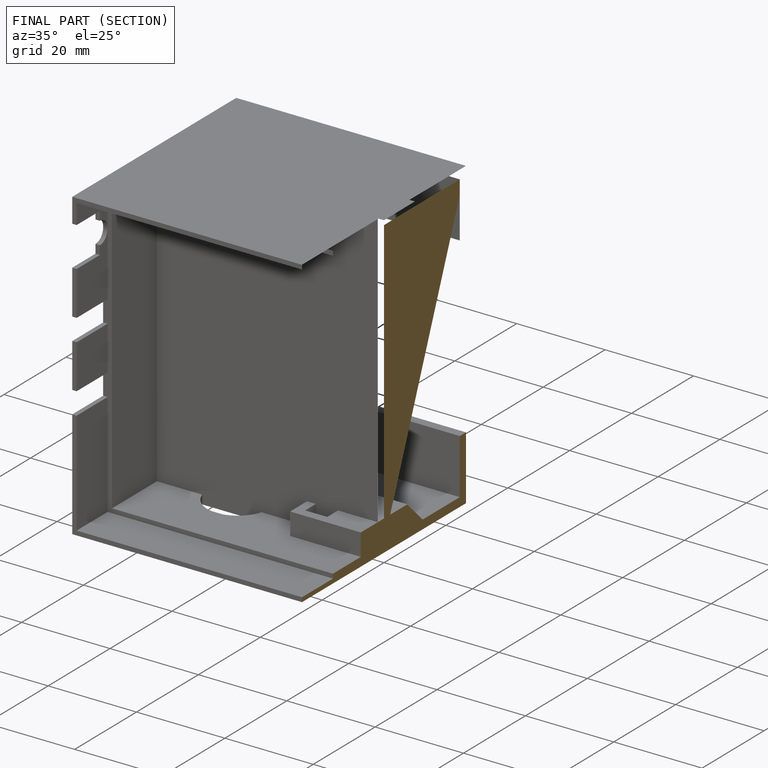
[diagram: finished part — half-section view (interior)]
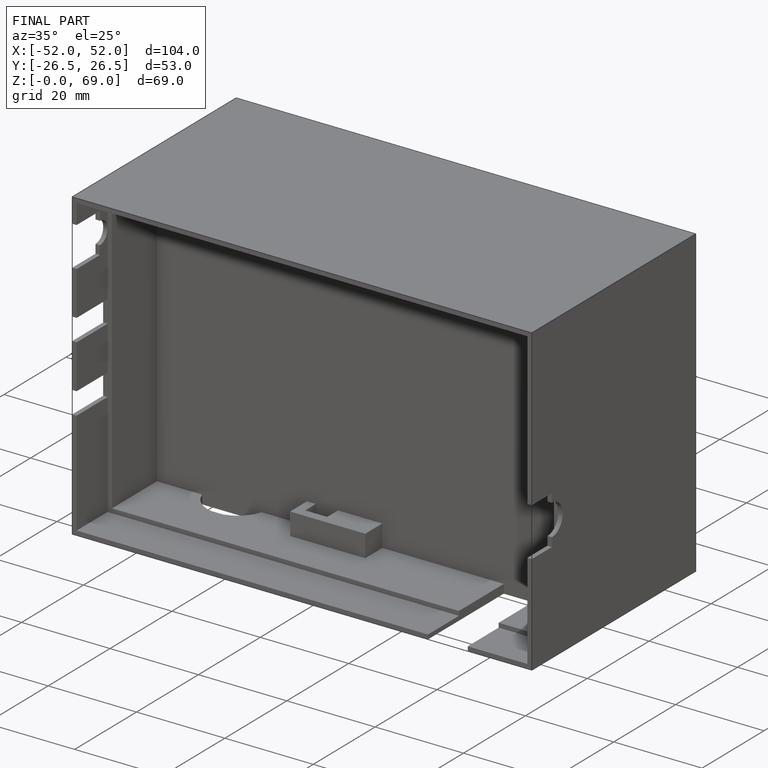
[diagram: finished part — iso view with bounding-box wireframe]
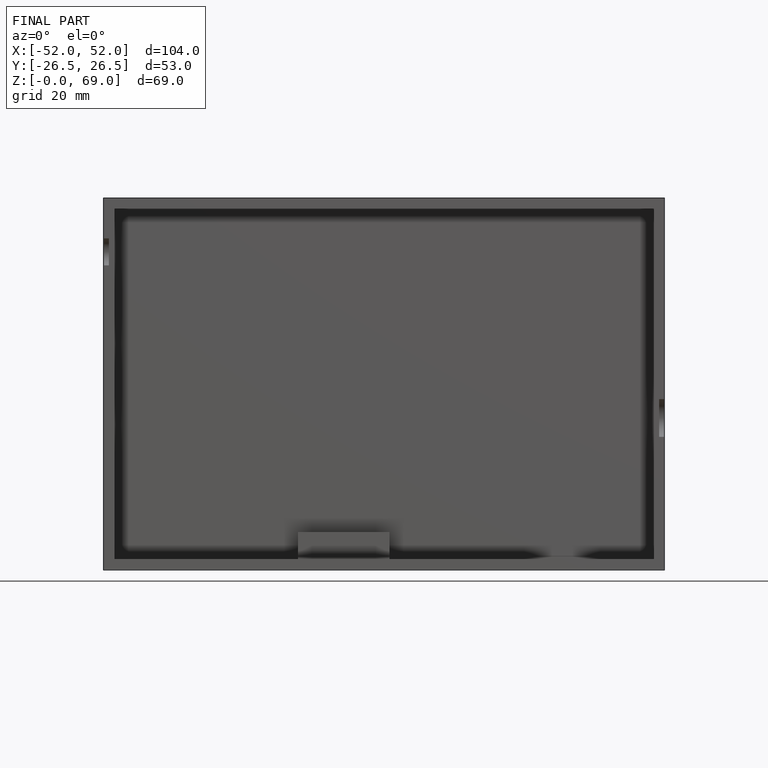
[diagram: finished part — front view with bounding-box wireframe]
